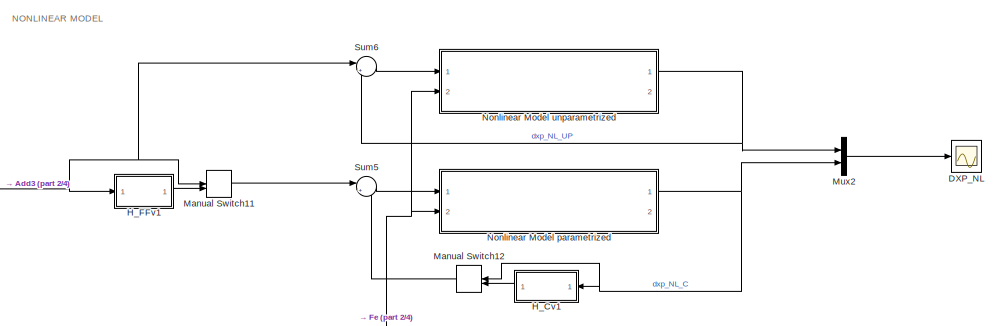
[diagram: root canvas - part 1/4, top right region]
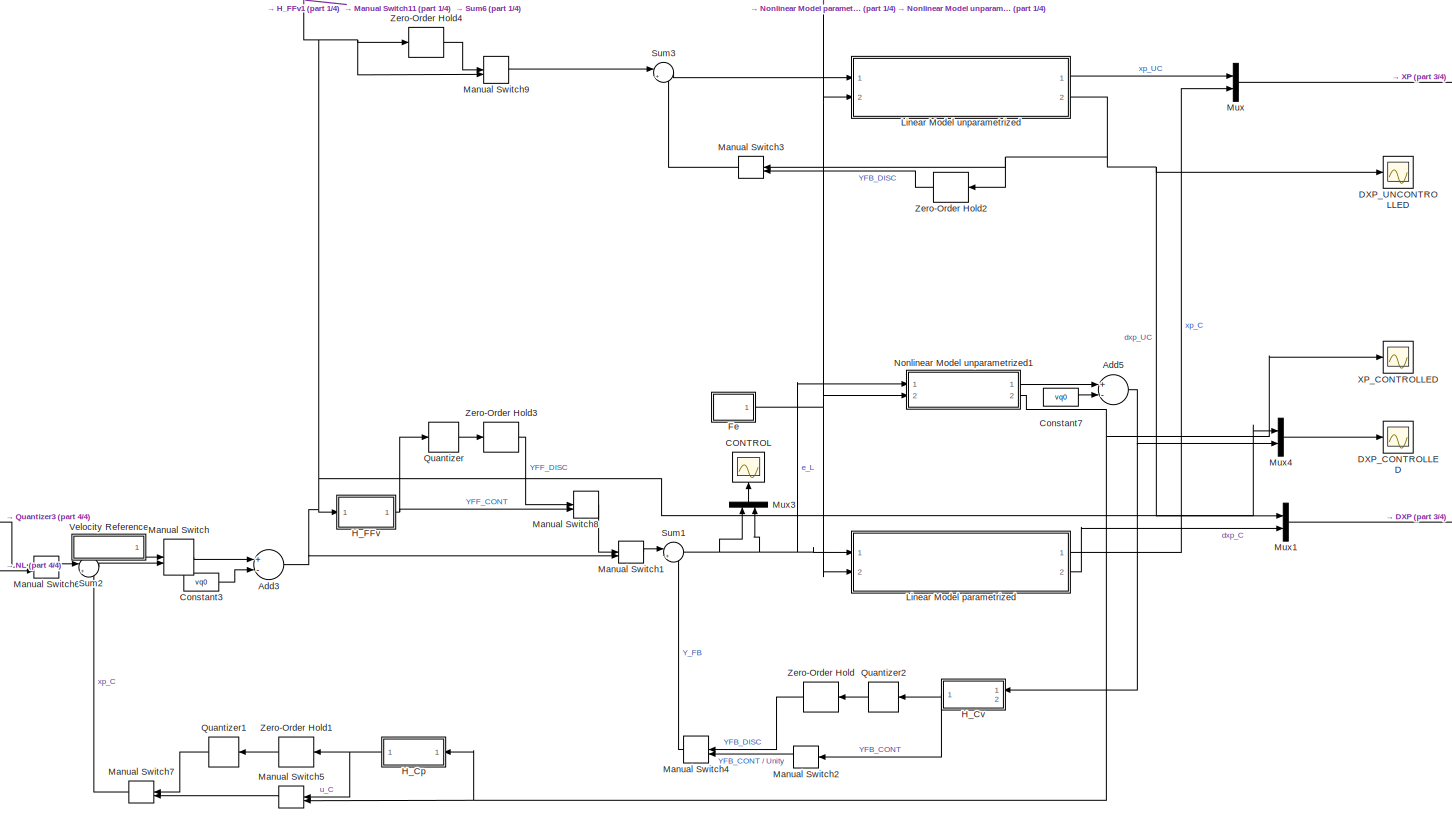
[diagram: root canvas - part 2/4, central region]
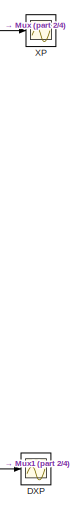
[diagram: root canvas - part 3/4, middle right region]
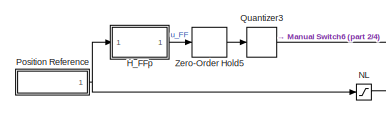
[diagram: root canvas - part 4/4, bottom left region]
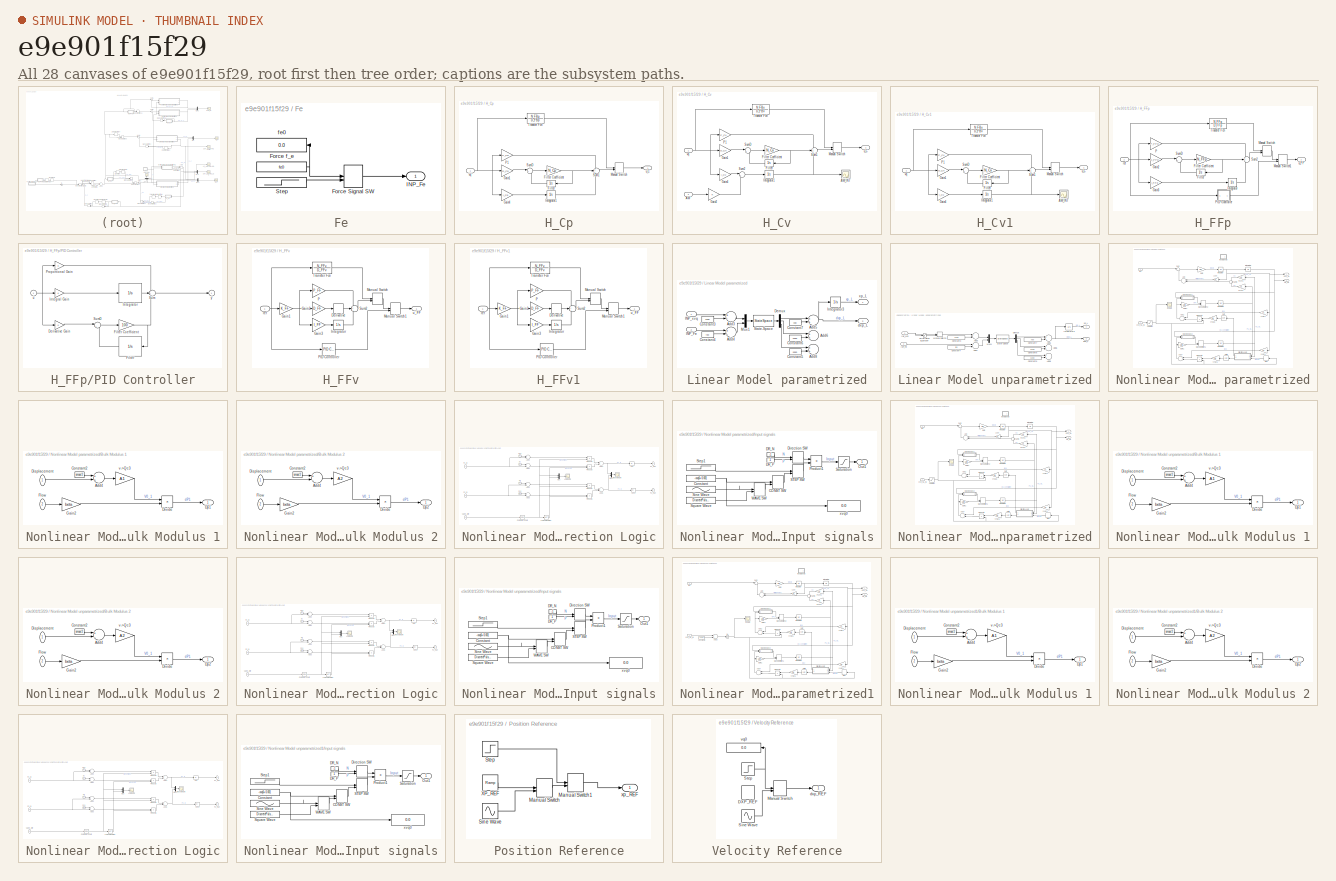
[diagram: thumbnail index - all 28 canvases of the model, root first then tree order]
MODEL slx_e9e901f15f29
KIND model
CONFIG AbsTol = auto
CONFIG EnableMultiTasking = off
CONFIG FixedStep = auto
CONFIG InitFcn = ex5LIN_param
CONFIG MaxStep = auto
CONFIG MinStep = auto
CONFIG RelTol = 1e-3
CONFIG SampleTimeConstraint = Unconstrained
CONFIG Solver = ode15s
CONFIG SolverName = ode15s
CONFIG StartTime = 0.0
CONFIG StopTime = 10
BLOCK [Sum] Add3
  InputSameDT = off
  Inputs = +-
  OutDataTypeStr = Inherit: Inherit via internal rule
  Ports = [2, 1]
  SaturateOnIntegerOverflow = off
BLOCK [Sum] Add5
  InputSameDT = off
  Inputs = +-
  OutDataTypeStr = Inherit: Inherit via internal rule
  Ports = [2, 1]
  SaturateOnIntegerOverflow = off
BLOCK [Scope] CONTROL
  NumInputPorts = 1
  Ports = [1]
  ScopeSpecificationString = Simulink.scopes.TimeScopeBlockCfg('CurrentConfiguration', extmgr.ConfigurationSet(extmgr.Configuration('Core','General UI',true),extmgr.Configuration('Core','Source UI',true),extmgr.Configuration('Sources','WiredSimulink',true,'DataLoggingVariableName','ScopeData1'),extmgr.Configuration('Visuals','Time Domain',true,'SerializedDisplays',{struct('MinYLimReal','-0.0125','MaxYLimReal','0.0125','YLabel...<+1688ch>
BLOCK [Constant] Constant3
  Value = vq0
BLOCK [Constant] Constant7
  Value = vq0
BLOCK [Scope] DXP
  NumInputPorts = 1
  Ports = [1]
  ScopeSpecificationString = Simulink.scopes.TimeScopeBlockCfg('CurrentConfiguration', extmgr.ConfigurationSet(extmgr.Configuration('Core','General UI',true),extmgr.Configuration('Core','Source UI',true),extmgr.Configuration('Sources','WiredSimulink',true,'DataLoggingVariableName','ScopeData3'),extmgr.Configuration('Visuals','Time Domain',true,'SerializedDisplays',{struct('MinYLimReal','-1.2721','MaxYLimReal','1.20042','YLabe...<+1669ch>
BLOCK [Scope] DXP_CONTROLLED
  NumInputPorts = 1
  Ports = [1]
  ScopeSpecificationString = Simulink.scopes.TimeScopeBlockCfg('CurrentConfiguration', extmgr.ConfigurationSet(extmgr.Configuration('Core','General UI',true),extmgr.Configuration('Core','Source UI',true),extmgr.Configuration('Sources','WiredSimulink',true,'DataLoggingVariableName','ScopeData3'),extmgr.Configuration('Visuals','Time Domain',true,'SerializedDisplays',{struct('MinYLimReal','-1.90363','MaxYLimReal','0.21151','YLab...<+1696ch>
BLOCK [Scope] DXP_NL
  Commented = on
  NumInputPorts = 1
  Ports = [1]
  ScopeSpecificationString = Simulink.scopes.TimeScopeBlockCfg('CurrentConfiguration', extmgr.ConfigurationSet(extmgr.Configuration('Core','General UI',true),extmgr.Configuration('Core','Source UI',true),extmgr.Configuration('Sources','WiredSimulink',true,'DataLoggingVariableName','ScopeData7'),extmgr.Configuration('Visuals','Time Domain',true,'SerializedDisplays',{struct('MinYLimReal','-0.13915','MaxYLimReal','1.25232','YLab...<+1668ch>
BLOCK [Scope] DXP_UNCONTROLLED
  Commented = on
  NumInputPorts = 1
  Ports = [1]
  ScopeSpecificationString = Simulink.scopes.TimeScopeBlockCfg('CurrentConfiguration', extmgr.ConfigurationSet(extmgr.Configuration('Core','General UI',true),extmgr.Configuration('Core','Source UI',true),extmgr.Configuration('Sources','WiredSimulink',true,'DataLoggingVariableName','ScopeData2'),extmgr.Configuration('Visuals','Time Domain',true,'SerializedDisplays',{struct('MinYLimReal','-1.2648','MaxYLimReal','1.19317','YLabe...<+1628ch>
BLOCK [SubSystem] Fe
  Ports = [0, 1]
  RequestExecContextInheritance = off
  Variant = off
BLOCK [ManualSwitch] Fe/Force Signal SW
BLOCK [Constant] Fe/Force f_e
  Value = fe0
BLOCK [Outport] Fe/INP_Fe
  IconDisplay = Port number
BLOCK [Step] Fe/Step
  After = 0
  SampleTime = 0
  Time = 0.12
BLOCK [Display] Fe/fe0
  Decimation = 1
  Ports = [1]
BLOCK [SubSystem] H_Cp
  Commented = on
  Ports = [1, 1]
  RequestExecContextInheritance = off
  Variant = off
BLOCK [Integrator] H_Cp/Filter
  DisableCoverage = on
  Ports = [1, 1]
BLOCK [Gain] H_Cp/Filter Coefficient
  Gain = N_Cp
  OutDataTypeStr = Inherit: Inherit via internal rule
  ParamDataTypeStr = Inherit: Inherit via internal rule
  SaturateOnIntegerOverflow = off
BLOCK [Gain] H_Cp/Gain1
  Gain = D_Cp
  OutDataTypeStr = Inherit: Inherit via internal rule
  ParamDataTypeStr = Inherit: Inherit via internal rule
  SaturateOnIntegerOverflow = off
BLOCK [Gain] H_Cp/Gain4
  Gain = I_Cp
  OutDataTypeStr = Inherit: Inherit via internal rule
  ParamDataTypeStr = Inherit: Inherit via internal rule
  SaturateOnIntegerOverflow = off
BLOCK [Integrator] H_Cp/Integrator1
  Ports = [1, 1]
BLOCK [ManualSwitch] H_Cp/Manual Switch
BLOCK [Gain] H_Cp/P1
  Gain = P_Cp
  OutDataTypeStr = Inherit: Inherit via internal rule
  ParamDataTypeStr = Inherit: Inherit via internal rule
  SaturateOnIntegerOverflow = off
BLOCK [Sum] H_Cp/Sum1
  IconShape = round
  InputSameDT = off
  Inputs = +++
  OutDataTypeStr = Inherit: Inherit via internal rule
  Ports = [3, 1]
  SaturateOnIntegerOverflow = off
BLOCK [Sum] H_Cp/SumD
  DisableCoverage = on
  IconShape = round
  InputSameDT = off
  Inputs = |+-
  OutDataTypeStr = Inherit: Inherit via internal rule
  Ports = [2, 1]
  SaturateOnIntegerOverflow = off
BLOCK [TransferFcn] H_Cp/Transfer Fcn
  Denominator = D_FBp
  Numerator = N_FBp
BLOCK [Outport] H_Cp/u_C
  IconDisplay = Port number
BLOCK [Inport] H_Cp/vq
  IconDisplay = Port number
BLOCK [SubSystem] H_Cv
  Ports = [2, 1]
  RequestExecContextInheritance = off
  Variant = off
BLOCK [Inport] H_Cv/AW
  IconDisplay = Port number
  Port = 2
BLOCK [Scope] H_Cv/AW_INT
  NumInputPorts = 1
  Ports = [1]
  ScopeSpecificationString = Simulink.scopes.TimeScopeBlockCfg('CurrentConfiguration', extmgr.ConfigurationSet(extmgr.Configuration('Core','General UI',true),extmgr.Configuration('Core','Source UI',true),extmgr.Configuration('Sources','WiredSimulink',true,'DataLoggingVariableName','ScopeData6'),extmgr.Configuration('Visuals','Time Domain',true,'SerializedDisplays',{struct('MinYLimReal','-1.00000','MaxYLimReal','1.00000','YLab...<+1637ch>
BLOCK [Integrator] H_Cv/Filter
  DisableCoverage = on
  Ports = [1, 1]
BLOCK [Gain] H_Cv/Filter Coefficient
  Gain = N_Cv
  OutDataTypeStr = Inherit: Inherit via internal rule
  ParamDataTypeStr = Inherit: Inherit via internal rule
  SaturateOnIntegerOverflow = off
BLOCK [Gain] H_Cv/Gain1
  Gain = D_Cv
  OutDataTypeStr = Inherit: Inherit via internal rule
  ParamDataTypeStr = Inherit: Inherit via internal rule
  SaturateOnIntegerOverflow = off
BLOCK [Gain] H_Cv/Gain2
  OutDataTypeStr = Inherit: Inherit via internal rule
  ParamDataTypeStr = Inherit: Inherit via internal rule
  SaturateOnIntegerOverflow = off
BLOCK [Gain] H_Cv/Gain4
  Gain = I_Cv
  OutDataTypeStr = Inherit: Inherit via internal rule
  ParamDataTypeStr = Inherit: Inherit via internal rule
  SaturateOnIntegerOverflow = off
BLOCK [Integrator] H_Cv/Integrator1
  Ports = [1, 1]
BLOCK [ManualSwitch] H_Cv/Manual Switch
BLOCK [Gain] H_Cv/P1
  Gain = P_Cv
  OutDataTypeStr = Inherit: Inherit via internal rule
  ParamDataTypeStr = Inherit: Inherit via internal rule
  SaturateOnIntegerOverflow = off
BLOCK [Sum] H_Cv/Sum1
  IconShape = round
  InputSameDT = off
  Inputs = +++
  OutDataTypeStr = Inherit: Inherit via internal rule
  Ports = [3, 1]
  SaturateOnIntegerOverflow = off
BLOCK [Sum] H_Cv/Sum2
  IconShape = round
  InputSameDT = off
  Inputs = |+-
  OutDataTypeStr = Inherit: Inherit via internal rule
  Ports = [2, 1]
  SaturateOnIntegerOverflow = off
BLOCK [Sum] H_Cv/SumD
  DisableCoverage = on
  IconShape = round
  InputSameDT = off
  Inputs = |+-
  OutDataTypeStr = Inherit: Inherit via internal rule
  Ports = [2, 1]
  SaturateOnIntegerOverflow = off
BLOCK [TransferFcn] H_Cv/Transfer Fcn
  Denominator = D_FBv
  Numerator = N_FBv
BLOCK [Outport] H_Cv/u_C
  IconDisplay = Port number
BLOCK [Inport] H_Cv/vq
  IconDisplay = Port number
BLOCK [SubSystem] H_Cv1
  Commented = on
  Ports = [1, 1]
  RequestExecContextInheritance = off
  Variant = off
BLOCK [Scope] H_Cv1/AW_INT
  NumInputPorts = 1
  Ports = [1]
  ScopeSpecificationString = Simulink.scopes.TimeScopeBlockCfg('CurrentConfiguration', extmgr.ConfigurationSet(extmgr.Configuration('Core','General UI',true),extmgr.Configuration('Core','Source UI',true),extmgr.Configuration('Sources','WiredSimulink',true,'DataLoggingVariableName','ScopeData6'),extmgr.Configuration('Visuals','Time Domain',true,'SerializedDisplays',{struct('MinYLimReal','-1.00000','MaxYLimReal','1.00000','YLab...<+1637ch>
BLOCK [Integrator] H_Cv1/Filter
  DisableCoverage = on
  Ports = [1, 1]
BLOCK [Gain] H_Cv1/Filter Coefficient
  Gain = N_Cv
  OutDataTypeStr = Inherit: Inherit via internal rule
  ParamDataTypeStr = Inherit: Inherit via internal rule
  SaturateOnIntegerOverflow = off
BLOCK [Gain] H_Cv1/Gain1
  Gain = D_Cv
  OutDataTypeStr = Inherit: Inherit via internal rule
  ParamDataTypeStr = Inherit: Inherit via internal rule
  SaturateOnIntegerOverflow = off
BLOCK [Gain] H_Cv1/Gain4
  Gain = I_Cv
  OutDataTypeStr = Inherit: Inherit via internal rule
  ParamDataTypeStr = Inherit: Inherit via internal rule
  SaturateOnIntegerOverflow = off
BLOCK [Integrator] H_Cv1/Integrator1
  Ports = [1, 1]
BLOCK [ManualSwitch] H_Cv1/Manual Switch
  CurrentSetting = 0
BLOCK [Gain] H_Cv1/P1
  Gain = P_Cv
  OutDataTypeStr = Inherit: Inherit via internal rule
  ParamDataTypeStr = Inherit: Inherit via internal rule
  SaturateOnIntegerOverflow = off
BLOCK [Sum] H_Cv1/Sum1
  IconShape = round
  InputSameDT = off
  Inputs = +++
  OutDataTypeStr = Inherit: Inherit via internal rule
  Ports = [3, 1]
  SaturateOnIntegerOverflow = off
BLOCK [Sum] H_Cv1/SumD
  DisableCoverage = on
  IconShape = round
  InputSameDT = off
  Inputs = |+-
  OutDataTypeStr = Inherit: Inherit via internal rule
  Ports = [2, 1]
  SaturateOnIntegerOverflow = off
BLOCK [TransferFcn] H_Cv1/Transfer Fcn
  Denominator = D_FBv
  Numerator = N_FBv
BLOCK [Outport] H_Cv1/u_C
  IconDisplay = Port number
BLOCK [Inport] H_Cv1/vq
  IconDisplay = Port number
BLOCK [SubSystem] H_FFp
  Commented = on
  Ports = [1, 1]
  RequestExecContextInheritance = off
  Variant = off
BLOCK [Integrator] H_FFp/Filter
  Commented = on
  DisableCoverage = on
  Ports = [1, 1]
BLOCK [Gain] H_FFp/Filter Coefficient
  Commented = on
  Gain = N_FFp
  OutDataTypeStr = Inherit: Inherit via internal rule
  ParamDataTypeStr = Inherit: Inherit via internal rule
  SaturateOnIntegerOverflow = off
BLOCK [Gain] H_FFp/Gain2
  Commented = on
  Gain = D_FFp
  OutDataTypeStr = Inherit: Inherit via internal rule
  ParamDataTypeStr = Inherit: Inherit via internal rule
  SaturateOnIntegerOverflow = off
BLOCK [Gain] H_FFp/Gain3
  Commented = on
  Gain = I_FFp
  OutDataTypeStr = Inherit: Inherit via internal rule
  ParamDataTypeStr = Inherit: Inherit via internal rule
  SaturateOnIntegerOverflow = off
BLOCK [Integrator] H_FFp/Integrator
  Commented = on
  Ports = [1, 1]
BLOCK [ManualSwitch] H_FFp/Manual Switch
BLOCK [ManualSwitch] H_FFp/Manual Switch1
BLOCK [Gain] H_FFp/P
  Commented = on
  Gain = P_FFp
  OutDataTypeStr = Inherit: Inherit via internal rule
  ParamDataTypeStr = Inherit: Inherit via internal rule
  SaturateOnIntegerOverflow = off
BLOCK [SubSystem] H_FFp/PID Controller
  AncestorBlock = simulink/Continuous/PID Controller
  DeleteFcn = pidpack.PIDConfig.closeTuner(gcbh)
  DialogController = pidpack.PIDConfig.pidDDGCreate
  ModelCloseFcn = pidpack.PIDConfig.closeTuner(gcbh)
  NameChangeFcn = pidpack.PIDConfig.updateTunerName(gcbh)
  Ports = [1, 1]
  RequestExecContextInheritance = off
  Variant = off
BLOCK [Gain] H_FFp/PID Controller/Derivative Gain
  DisableCoverage = on
  Gain = 0
  OutDataTypeStr = Inherit: Inherit via internal rule
  ParamDataTypeStr = Inherit: Inherit via internal rule
  SaturateOnIntegerOverflow = off
BLOCK [Integrator] H_FFp/PID Controller/Filter
  DisableCoverage = on
  Ports = [1, 1]
BLOCK [Gain] H_FFp/PID Controller/Filter Coefficient
  Gain = 100
  OutDataTypeStr = Inherit: Inherit via internal rule
  ParamDataTypeStr = Inherit: Inherit via internal rule
  SaturateOnIntegerOverflow = off
BLOCK [Gain] H_FFp/PID Controller/Integral Gain
  DisableCoverage = on
  OutDataTypeStr = Inherit: Inherit via internal rule
  ParamDataTypeStr = Inherit: Inherit via internal rule
  SaturateOnIntegerOverflow = off
BLOCK [Integrator] H_FFp/PID Controller/Integrator
  Ports = [1, 1]
BLOCK [Gain] H_FFp/PID Controller/Proportional Gain
  OutDataTypeStr = Inherit: Inherit via internal rule
  ParamDataTypeStr = Inherit: Inherit via internal rule
  SaturateOnIntegerOverflow = off
BLOCK [Sum] H_FFp/PID Controller/Sum
  IconShape = round
  InputSameDT = off
  Inputs = +++
  OutDataTypeStr = Inherit: Inherit via internal rule
  Ports = [3, 1]
  SaturateOnIntegerOverflow = off
BLOCK [Sum] H_FFp/PID Controller/SumD
  DisableCoverage = on
  IconShape = round
  InputSameDT = off
  Inputs = |+-
  OutDataTypeStr = Inherit: Inherit via internal rule
  Ports = [2, 1]
  SaturateOnIntegerOverflow = off
BLOCK [Inport] H_FFp/PID Controller/u
  IconDisplay = Port number
BLOCK [Outport] H_FFp/PID Controller/y
  IconDisplay = Port number
  InitialOutput = 0
BLOCK [Sum] H_FFp/Sum2
  Commented = on
  IconShape = round
  InputSameDT = off
  Inputs = +++
  OutDataTypeStr = Inherit: Inherit via internal rule
  Ports = [3, 1]
  SaturateOnIntegerOverflow = off
BLOCK [Sum] H_FFp/SumD
  Commented = on
  DisableCoverage = on
  IconShape = round
  InputSameDT = off
  Inputs = |+-
  OutDataTypeStr = Inherit: Inherit via internal rule
  Ports = [2, 1]
  SaturateOnIntegerOverflow = off
BLOCK [TransferFcn] H_FFp/Transfer Fcn
  Denominator = D_FFp
  Numerator = N_FFp
BLOCK [Inport] H_FFp/ref
  IconDisplay = Port number
BLOCK [Outport] H_FFp/u_FF
  IconDisplay = Port number
BLOCK [SubSystem] H_FFv
  Ports = [1, 1]
  RequestExecContextInheritance = off
  Variant = off
BLOCK [Derivative] H_FFv/Derivative
  CoefficientInTFapproximation = T_LPFF
  Commented = on
BLOCK [Gain] H_FFv/Gain1
  Commented = on
  Gain = K_FF
  OutDataTypeStr = Inherit: Inherit via internal rule
  ParamDataTypeStr = Inherit: Inherit via internal rule
  SaturateOnIntegerOverflow = off
BLOCK [Gain] H_FFv/Gain2
  Commented = on
  Gain = D_FF
  OutDataTypeStr = Inherit: Inherit via internal rule
  ParamDataTypeStr = Inherit: Inherit via internal rule
  SaturateOnIntegerOverflow = off
BLOCK [Gain] H_FFv/Gain3
  Commented = on
  Gain = I_FF
  OutDataTypeStr = Inherit: Inherit via internal rule
  ParamDataTypeStr = Inherit: Inherit via internal rule
  SaturateOnIntegerOverflow = off
BLOCK [Integrator] H_FFv/Integrator
  Commented = on
  Ports = [1, 1]
BLOCK [ManualSwitch] H_FFv/Manual Switch
BLOCK [ManualSwitch] H_FFv/Manual Switch1
BLOCK [Gain] H_FFv/P
  Commented = on
  Gain = P_FF
  OutDataTypeStr = Inherit: Inherit via internal rule
  ParamDataTypeStr = Inherit: Inherit via internal rule
  SaturateOnIntegerOverflow = off
BLOCK [Reference] H_FFv/PID Controller  REF=simulink/Continuous/PID Controller
  Commented = on
  Ports = [1, 1]
  SourceBlock = simulink/Continuous/PID Controller
  SourceType = PID 1dof
BLOCK [Sum] H_FFv/Sum2
  Commented = on
  IconShape = round
  InputSameDT = off
  Inputs = +++
  OutDataTypeStr = Inherit: Inherit via internal rule
  Ports = [3, 1]
  SaturateOnIntegerOverflow = off
BLOCK [TransferFcn] H_FFv/Transfer Fcn
  Denominator = D_FFv
  Numerator = N_FFv
BLOCK [Inport] H_FFv/ref
  IconDisplay = Port number
BLOCK [Outport] H_FFv/u_FF
  IconDisplay = Port number
BLOCK [SubSystem] H_FFv1
  Commented = on
  Ports = [1, 1]
  RequestExecContextInheritance = off
  Variant = off
BLOCK [Derivative] H_FFv1/Derivative
  CoefficientInTFapproximation = T_LPFF
  Commented = on
BLOCK [Gain] H_FFv1/Gain1
  Commented = on
  Gain = K_FF
  OutDataTypeStr = Inherit: Inherit via internal rule
  ParamDataTypeStr = Inherit: Inherit via internal rule
  SaturateOnIntegerOverflow = off
BLOCK [Gain] H_FFv1/Gain2
  Commented = on
  Gain = D_FF
  OutDataTypeStr = Inherit: Inherit via internal rule
  ParamDataTypeStr = Inherit: Inherit via internal rule
  SaturateOnIntegerOverflow = off
BLOCK [Gain] H_FFv1/Gain3
  Commented = on
  Gain = I_FF
  OutDataTypeStr = Inherit: Inherit via internal rule
  ParamDataTypeStr = Inherit: Inherit via internal rule
  SaturateOnIntegerOverflow = off
BLOCK [Integrator] H_FFv1/Integrator
  Commented = on
  Ports = [1, 1]
BLOCK [ManualSwitch] H_FFv1/Manual Switch
BLOCK [ManualSwitch] H_FFv1/Manual Switch1
BLOCK [Gain] H_FFv1/P
  Commented = on
  Gain = P_FF
  OutDataTypeStr = Inherit: Inherit via internal rule
  ParamDataTypeStr = Inherit: Inherit via internal rule
  SaturateOnIntegerOverflow = off
BLOCK [Reference] H_FFv1/PID Controller  REF=simulink/Continuous/PID Controller
  Commented = on
  Ports = [1, 1]
  SourceBlock = simulink/Continuous/PID Controller
  SourceType = PID 1dof
BLOCK [Sum] H_FFv1/Sum2
  Commented = on
  IconShape = round
  InputSameDT = off
  Inputs = +++
  OutDataTypeStr = Inherit: Inherit via internal rule
  Ports = [3, 1]
  SaturateOnIntegerOverflow = off
BLOCK [TransferFcn] H_FFv1/Transfer Fcn
  Denominator = D_FFv
  Numerator = N_FFv
BLOCK [Inport] H_FFv1/ref
  IconDisplay = Port number
BLOCK [Outport] H_FFv1/u_FF
  IconDisplay = Port number
BLOCK [SubSystem] Linear Model parametrized
  Commented = on
  Ports = [2, 2]
  RequestExecContextInheritance = off
  Variant = off
BLOCK [Sum] Linear Model parametrized/Add3
  InputSameDT = off
  Inputs = +-
  OutDataTypeStr = Inherit: Inherit via internal rule
  Ports = [2, 1]
  SaturateOnIntegerOverflow = off
BLOCK [Sum] Linear Model parametrized/Add4
  InputSameDT = off
  Inputs = +-
  OutDataTypeStr = Inherit: Inherit via internal rule
  Ports = [2, 1]
  SaturateOnIntegerOverflow = off
BLOCK [Sum] Linear Model parametrized/Add5
  InputSameDT = off
  OutDataTypeStr = Inherit: Inherit via internal rule
  Ports = [2, 1]
  SaturateOnIntegerOverflow = off
BLOCK [Sum] Linear Model parametrized/Add6
  Commented = on
  InputSameDT = off
  OutDataTypeStr = Inherit: Inherit via internal rule
  Ports = [2, 1]
  SaturateOnIntegerOverflow = off
BLOCK [Sum] Linear Model parametrized/Add8
  Commented = on
  InputSameDT = off
  OutDataTypeStr = Inherit: Inherit via internal rule
  Ports = [2, 1]
  SaturateOnIntegerOverflow = off
BLOCK [Constant] Linear Model parametrized/Constant3
  Value = xvq0
BLOCK [Constant] Linear Model parametrized/Constant4
  Value = fe0
BLOCK [Constant] Linear Model parametrized/Constant5
  Value = p2q0
BLOCK [Constant] Linear Model parametrized/Constant6
  Value = p1q0
BLOCK [Constant] Linear Model parametrized/Constant7
  Value = vq0
BLOCK [Demux] Linear Model parametrized/Demux
  DisplayOption = bar
  Outputs = 3
  Ports = [1, 3]
BLOCK [Inport] Linear Model parametrized/INP_Fe
  IconDisplay = Port number
  Port = 2
BLOCK [Inport] Linear Model parametrized/INP_xvq
  IconDisplay = Port number
BLOCK [Integrator] Linear Model parametrized/Integrator3
  Ports = [1, 1]
BLOCK [Mux] Linear Model parametrized/Mux1
  DisplayOption = bar
  Inputs = 2
  Ports = [2, 1]
BLOCK [StateSpace] Linear Model parametrized/State-Space
  A = A
  B = B
  C = C
  D = D0
  Ports = [1, 1]
  X0 = 0
BLOCK [Outport] Linear Model parametrized/dxp_L
  IconDisplay = Port number
  Port = 2
BLOCK [Outport] Linear Model parametrized/xp_L
  IconDisplay = Port number
BLOCK [SubSystem] Linear Model unparametrized
  Commented = on
  Ports = [2, 2]
  RequestExecContextInheritance = off
  Variant = off
BLOCK [Sum] Linear Model unparametrized/Add3
  InputSameDT = off
  Inputs = +-
  OutDataTypeStr = Inherit: Inherit via internal rule
  Ports = [2, 1]
  SaturateOnIntegerOverflow = off
BLOCK [Sum] Linear Model unparametrized/Add4
  InputSameDT = off
  Inputs = +-
  OutDataTypeStr = Inherit: Inherit via internal rule
  Ports = [2, 1]
  SaturateOnIntegerOverflow = off
BLOCK [Sum] Linear Model unparametrized/Add5
  InputSameDT = off
  OutDataTypeStr = Inherit: Inherit via internal rule
  Ports = [2, 1]
  SaturateOnIntegerOverflow = off
BLOCK [Sum] Linear Model unparametrized/Add6
  Commented = on
  InputSameDT = off
  OutDataTypeStr = Inherit: Inherit via internal rule
  Ports = [2, 1]
  SaturateOnIntegerOverflow = off
BLOCK [Sum] Linear Model unparametrized/Add8
  Commented = on
  InputSameDT = off
  OutDataTypeStr = Inherit: Inherit via internal rule
  Ports = [2, 1]
  SaturateOnIntegerOverflow = off
BLOCK [Constant] Linear Model unparametrized/Constant3
  Value = xvq0
BLOCK [Constant] Linear Model unparametrized/Constant4
  Value = fe0
BLOCK [Constant] Linear Model unparametrized/Constant5
  Value = p2q0
BLOCK [Constant] Linear Model unparametrized/Constant6
  Value = p1q0
BLOCK [Constant] Linear Model unparametrized/Constant7
  Value = vq0
BLOCK [Demux] Linear Model unparametrized/Demux
  DisplayOption = bar
  Outputs = 3
  Ports = [1, 3]
BLOCK [Inport] Linear Model unparametrized/INP_Fe
  IconDisplay = Port number
  Port = 2
BLOCK [Inport] Linear Model unparametrized/INP_xvq
  IconDisplay = Port number
BLOCK [Integrator] Linear Model unparametrized/Integrator3
  Ports = [1, 1]
BLOCK [ManualSwitch] Linear Model unparametrized/Manual Switch3
  CurrentSetting = 0
BLOCK [Mux] Linear Model unparametrized/Mux1
  DisplayOption = bar
  Inputs = 2
  Ports = [2, 1]
BLOCK [Saturate] Linear Model unparametrized/NONLINEAR ELEMENT
  InputPortMap = u0
  LowerLimit = vn
  Ports = [1, 1]
  UpperLimit = vp
BLOCK [StateSpace] Linear Model unparametrized/State-Space
  A = A
  B = B
  C = C
  D = D0
  Ports = [1, 1]
  X0 = 0
BLOCK [Outport] Linear Model unparametrized/dxp_L
  IconDisplay = Port number
  Port = 2
BLOCK [Outport] Linear Model unparametrized/xp_L
  IconDisplay = Port number
BLOCK [ManualSwitch] Manual Switch
  CurrentSetting = 0
BLOCK [ManualSwitch] Manual Switch1
BLOCK [ManualSwitch] Manual Switch11
  Commented = on
  CurrentSetting = 0
BLOCK [ManualSwitch] Manual Switch12
  Commented = on
  CurrentSetting = 0
BLOCK [ManualSwitch] Manual Switch2
BLOCK [ManualSwitch] Manual Switch3
  Commented = on
  CurrentSetting = 0
BLOCK [ManualSwitch] Manual Switch4
  CurrentSetting = 0
BLOCK [ManualSwitch] Manual Switch5
  CurrentSetting = 0
BLOCK [ManualSwitch] Manual Switch6
  CurrentSetting = 0
BLOCK [ManualSwitch] Manual Switch7
  CurrentSetting = 0
BLOCK [ManualSwitch] Manual Switch8
  CurrentSetting = 0
BLOCK [ManualSwitch] Manual Switch9
  Commented = on
BLOCK [Mux] Mux
  Commented = on
  DisplayOption = bar
  Inputs = 2
  Ports = [2, 1]
BLOCK [Mux] Mux1
  DisplayOption = bar
  Inputs = 2
  Ports = [2, 1]
BLOCK [Mux] Mux2
  Commented = on
  DisplayOption = bar
  Inputs = 2
  Ports = [2, 1]
BLOCK [Mux] Mux3
  DisplayOption = bar
  Inputs = 2
  Ports = [2, 1]
BLOCK [Mux] Mux4
  DisplayOption = bar
  Inputs = 2
  Ports = [2, 1]
BLOCK [Saturate] NL
  InputPortMap = u0
  LowerLimit = -0.35
  Ports = [1, 1]
  UpperLimit = 0.35
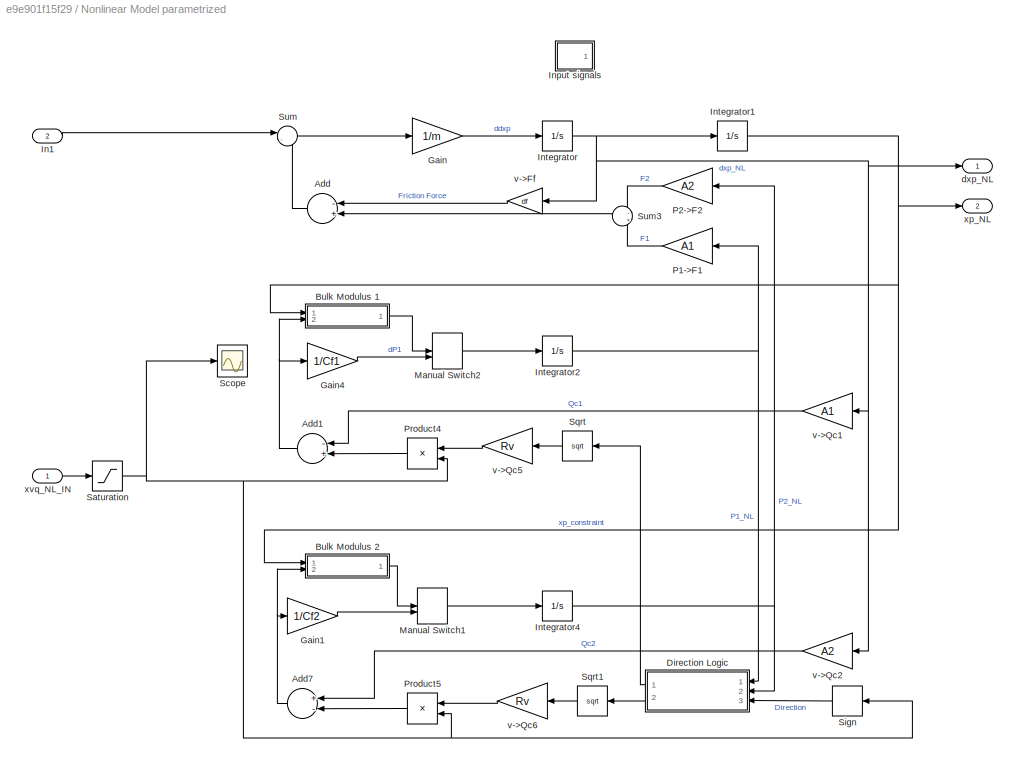
BLOCK [SubSystem] Nonlinear Model parametrized
  Commented = on
  Ports = [2, 2]
  RequestExecContextInheritance = off
  Variant = off
BLOCK [Sum] Nonlinear Model parametrized/Add
  InputSameDT = off
  Inputs = -+
  OutDataTypeStr = Inherit: Inherit via internal rule
  Ports = [2, 1]
  SaturateOnIntegerOverflow = off
BLOCK [Sum] Nonlinear Model parametrized/Add1
  InputSameDT = off
  Inputs = -+
  OutDataTypeStr = Inherit: Inherit via internal rule
  Ports = [2, 1]
  SaturateOnIntegerOverflow = off
BLOCK [Sum] Nonlinear Model parametrized/Add7
  InputSameDT = off
  Inputs = +-
  OutDataTypeStr = Inherit: Inherit via internal rule
  Ports = [2, 1]
  SaturateOnIntegerOverflow = off
BLOCK [SubSystem] Nonlinear Model parametrized/Bulk Modulus 1
  Commented = on
  Ports = [2, 1]
  RequestExecContextInheritance = off
  Variant = off
BLOCK [Sum] Nonlinear Model parametrized/Bulk Modulus 1/Add4
  InputSameDT = off
  OutDataTypeStr = Inherit: Inherit via internal rule
  Ports = [2, 1]
  SaturateOnIntegerOverflow = off
BLOCK [Constant] Nonlinear Model parametrized/Bulk Modulus 1/Constant2
  Value = smax/2
BLOCK [Inport] Nonlinear Model parametrized/Bulk Modulus 1/Displacement
  IconDisplay = Port number
BLOCK [Product] Nonlinear Model parametrized/Bulk Modulus 1/Divide
  InputSameDT = off
  Inputs = /*
  OutDataTypeStr = Inherit: Inherit via internal rule
  Ports = [2, 1]
  RndMeth = Floor
  SaturateOnIntegerOverflow = off
BLOCK [Outport] Nonlinear Model parametrized/Bulk Modulus 1/Dp1
  IconDisplay = Port number
BLOCK [Inport] Nonlinear Model parametrized/Bulk Modulus 1/Flow
  IconDisplay = Port number
  Port = 2
BLOCK [Gain] Nonlinear Model parametrized/Bulk Modulus 1/Gain2
  Gain = beta
  OutDataTypeStr = Inherit: Inherit via internal rule
  ParamDataTypeStr = Inherit: Inherit via internal rule
  SaturateOnIntegerOverflow = off
BLOCK [Gain] Nonlinear Model parametrized/Bulk Modulus 1/v->Qc3
  Gain = A1
  OutDataTypeStr = Inherit: Inherit via internal rule
  ParamDataTypeStr = Inherit: Inherit via internal rule
  SaturateOnIntegerOverflow = off
BLOCK [SubSystem] Nonlinear Model parametrized/Bulk Modulus 2
  Commented = on
  Ports = [2, 1]
  RequestExecContextInheritance = off
  Variant = off
BLOCK [Sum] Nonlinear Model parametrized/Bulk Modulus 2/Add4
  InputSameDT = off
  Inputs = +-
  OutDataTypeStr = Inherit: Inherit via internal rule
  Ports = [2, 1]
  SaturateOnIntegerOverflow = off
BLOCK [Constant] Nonlinear Model parametrized/Bulk Modulus 2/Constant2
  Value = smax/2
BLOCK [Inport] Nonlinear Model parametrized/Bulk Modulus 2/Displacement
  IconDisplay = Port number
BLOCK [Product] Nonlinear Model parametrized/Bulk Modulus 2/Divide
  InputSameDT = off
  Inputs = /*
  OutDataTypeStr = Inherit: Inherit via internal rule
  Ports = [2, 1]
  RndMeth = Floor
  SaturateOnIntegerOverflow = off
BLOCK [Outport] Nonlinear Model parametrized/Bulk Modulus 2/Dp2
  IconDisplay = Port number
BLOCK [Inport] Nonlinear Model parametrized/Bulk Modulus 2/Flow
  IconDisplay = Port number
  Port = 2
BLOCK [Gain] Nonlinear Model parametrized/Bulk Modulus 2/Gain2
  Gain = beta
  OutDataTypeStr = Inherit: Inherit via internal rule
  ParamDataTypeStr = Inherit: Inherit via internal rule
  SaturateOnIntegerOverflow = off
BLOCK [Gain] Nonlinear Model parametrized/Bulk Modulus 2/v->Qc3
  Gain = A2
  OutDataTypeStr = Inherit: Inherit via internal rule
  ParamDataTypeStr = Inherit: Inherit via internal rule
  SaturateOnIntegerOverflow = off
BLOCK [SubSystem] Nonlinear Model parametrized/Direction Logic
  Ports = [3, 2]
  RequestExecContextInheritance = off
  Variant = off
BLOCK [Abs] Nonlinear Model parametrized/Direction Logic/Abs
  SaturateOnIntegerOverflow = off
  ZeroCross = off
BLOCK [Abs] Nonlinear Model parametrized/Direction Logic/Abs1
  SaturateOnIntegerOverflow = off
BLOCK [Sum] Nonlinear Model parametrized/Direction Logic/Add1
  InputSameDT = off
  Inputs = +-
  OutDataTypeStr = Inherit: Inherit via internal rule
  Ports = [2, 1]
  SaturateOnIntegerOverflow = off
BLOCK [Sum] Nonlinear Model parametrized/Direction Logic/Add2
  InputSameDT = off
  Inputs = -+
  OutDataTypeStr = Inherit: Inherit via internal rule
  Ports = [2, 1]
  SaturateOnIntegerOverflow = off
BLOCK [Sum] Nonlinear Model parametrized/Direction Logic/Add3
  InputSameDT = off
  Inputs = +-
  OutDataTypeStr = Inherit: Inherit via internal rule
  Ports = [2, 1]
  SaturateOnIntegerOverflow = off
BLOCK [Sum] Nonlinear Model parametrized/Direction Logic/Add4
  InputSameDT = off
  OutDataTypeStr = Inherit: Inherit via internal rule
  Ports = [2, 1]
  SaturateOnIntegerOverflow = off
BLOCK [Sum] Nonlinear Model parametrized/Direction Logic/Add5
  InputSameDT = off
  OutDataTypeStr = Inherit: Inherit via internal rule
  Ports = [2, 1]
  SaturateOnIntegerOverflow = off
BLOCK [Sum] Nonlinear Model parametrized/Direction Logic/Add9
  InputSameDT = off
  Inputs = +-
  OutDataTypeStr = Inherit: Inherit via internal rule
  Ports = [2, 1]
  SaturateOnIntegerOverflow = off
BLOCK [Reference] Nonlinear Model parametrized/Direction Logic/Compare To Zero  REF=simulink/Logic and Bit
Operations/Compare
To Zero
  Ports = [1, 1]
  SourceBlock = simulink/Logic and Bit\nOperations/Compare\nTo Zero
  SourceType = Compare To Zero
BLOCK [Scope] Nonlinear Model parametrized/Direction Logic/Logic Unit
  NumInputPorts = 1
  Ports = [1]
  ScopeSpecificationString = Simulink.scopes.TimeScopeBlockCfg('CurrentConfiguration', extmgr.ConfigurationSet(extmgr.Configuration('Core','General UI',true),extmgr.Configuration('Core','Source UI',true),extmgr.Configuration('Sources','WiredSimulink',true,'DataLoggingVariableName','ScopeData9'),extmgr.Configuration('Visuals','Time Domain',true,'SerializedDisplays',{struct('MinYLimReal','-0.125','MaxYLimReal','1.125','YLabelRe...<+1400ch>  <repeated x3 — deduplicated; at blocks: Logic Unit>
BLOCK [Logic] Nonlinear Model parametrized/Direction Logic/Logical Operator
  AllPortsSameDT = off
  Operator = NOT
  OutDataTypeStr = boolean
  Ports = [1, 1]
BLOCK [Mux] Nonlinear Model parametrized/Direction Logic/Mux
  DisplayOption = bar
  Inputs = 2
  Ports = [2, 1]
BLOCK [Mux] Nonlinear Model parametrized/Direction Logic/Mux1
  DisplayOption = bar
  Inputs = 2
  Ports = [2, 1]
BLOCK [Inport] Nonlinear Model parametrized/Direction Logic/P1_In
  IconDisplay = Port number
BLOCK [Outport] Nonlinear Model parametrized/Direction Logic/P1_Out
  IconDisplay = Port number
BLOCK [Inport] Nonlinear Model parametrized/Direction Logic/P2_In
  IconDisplay = Port number
  Port = 2
BLOCK [Outport] Nonlinear Model parametrized/Direction Logic/P2_Out
  IconDisplay = Port number
  Port = 2
BLOCK [Scope] Nonlinear Model parametrized/Direction Logic/Pressure Unit
  NumInputPorts = 1
  Ports = [1]
  ScopeSpecificationString = Simulink.scopes.TimeScopeBlockCfg('CurrentConfiguration', extmgr.ConfigurationSet(extmgr.Configuration('Core','General UI',true),extmgr.Configuration('Core','Source UI',true),extmgr.Configuration('Sources','WiredSimulink',true,'DataLoggingVariableName','ScopeData2'),extmgr.Configuration('Visuals','Time Domain',true,'SerializedDisplays',{struct('MinYLimReal','-893141.30415','MaxYLimReal','8065087.7...<+1443ch>
BLOCK [Product] Nonlinear Model parametrized/Direction Logic/Product2
  InputSameDT = off
  OutDataTypeStr = Inherit: Inherit via internal rule
  Ports = [2, 1]
  RndMeth = Floor
  SaturateOnIntegerOverflow = off
BLOCK [Product] Nonlinear Model parametrized/Direction Logic/Product3
  InputSameDT = off
  OutDataTypeStr = Inherit: Inherit via internal rule
  Ports = [2, 1]
  RndMeth = Floor
  SaturateOnIntegerOverflow = off
BLOCK [Product] Nonlinear Model parametrized/Direction Logic/Product4
  InputSameDT = off
  OutDataTypeStr = Inherit: Inherit via internal rule
  Ports = [2, 1]
  RndMeth = Floor
  SaturateOnIntegerOverflow = off
BLOCK [Product] Nonlinear Model parametrized/Direction Logic/Product5
  InputSameDT = off
  OutDataTypeStr = Inherit: Inherit via internal rule
  Ports = [2, 1]
  RndMeth = Floor
  SaturateOnIntegerOverflow = off
BLOCK [Constant] Nonlinear Model parametrized/Direction Logic/Ps1
  Value = Ps
BLOCK [Constant] Nonlinear Model parametrized/Direction Logic/Ps2
  Value = Ps
BLOCK [Constant] Nonlinear Model parametrized/Direction Logic/Pt
  Value = Pt
BLOCK [Constant] Nonlinear Model parametrized/Direction Logic/Pt1
  Value = Pt
BLOCK [Inport] Nonlinear Model parametrized/Direction Logic/Valve_DIR
  IconDisplay = Port number
  Port = 3
BLOCK [Gain] Nonlinear Model parametrized/Gain
  Gain = 1/m
  OutDataTypeStr = Inherit: Inherit via internal rule
  ParamDataTypeStr = Inherit: Inherit via internal rule
  SaturateOnIntegerOverflow = off
BLOCK [Gain] Nonlinear Model parametrized/Gain1
  Gain = 1/Cf2
  OutDataTypeStr = Inherit: Inherit via internal rule
  ParamDataTypeStr = Inherit: Inherit via internal rule
  SaturateOnIntegerOverflow = off
BLOCK [Gain] Nonlinear Model parametrized/Gain4
  Gain = 1/Cf1
  OutDataTypeStr = Inherit: Inherit via internal rule
  ParamDataTypeStr = Inherit: Inherit via internal rule
  SaturateOnIntegerOverflow = off
BLOCK [Inport] Nonlinear Model parametrized/In1
  IconDisplay = Port number
  Port = 2
BLOCK [SubSystem] Nonlinear Model parametrized/Input signals
  Commented = on
  Ports = [0, 1]
  RequestExecContextInheritance = off
  Variant = off
BLOCK [ManualSwitch] Nonlinear Model parametrized/Input signals/CONST SW
BLOCK [Constant] Nonlinear Model parametrized/Input signals/Constant
  Value = -xvq0+0.001
BLOCK [Constant] Nonlinear Model parametrized/Input signals/DR_N
  Value = -1
BLOCK [Constant] Nonlinear Model parametrized/Input signals/DR_P 
BLOCK [ManualSwitch] Nonlinear Model parametrized/Input signals/Direction SW
BLOCK [Outport] Nonlinear Model parametrized/Input signals/Out1
  IconDisplay = Port number
BLOCK [Product] Nonlinear Model parametrized/Input signals/Product1
  InputSameDT = off
  OutDataTypeStr = Inherit: Inherit via internal rule
  Ports = [2, 1]
  RndMeth = Floor
  SaturateOnIntegerOverflow = off
BLOCK [ManualSwitch] Nonlinear Model parametrized/Input signals/STEP SW
  CurrentSetting = 0
BLOCK [Saturate] Nonlinear Model parametrized/Input signals/Saturation
  InputPortMap = u0
  LowerLimit = vn
  Ports = [1, 1]
  UpperLimit = vp
BLOCK [Sin] Nonlinear Model parametrized/Input signals/Sine Wave
  Amplitude = xvq0
  Frequency = 2*pi*1/2
  Phase = pi/2
  Ports = [0, 1]
  SampleTime = 0
BLOCK [DiscretePulseGenerator] Nonlinear Model parametrized/Input signals/Square Wave
  Amplitude = 0.0001
  Ports = [0, 1]
  PulseType = Time based
  PulseWidth = 50
BLOCK [Step] Nonlinear Model parametrized/Input signals/Step1
  After = 0.005
  SampleTime = 0
  Time = 0
BLOCK [ManualSwitch] Nonlinear Model parametrized/Input signals/WAVE SW
BLOCK [Display] Nonlinear Model parametrized/Input signals/xvq0
  Decimation = 1
  Ports = [1]
BLOCK [Integrator] Nonlinear Model parametrized/Integrator
  Ports = [1, 1]
BLOCK [Integrator] Nonlinear Model parametrized/Integrator1
  LimitOutput = on
  LowerSaturationLimit = -(smax/2-d)
  Ports = [1, 1]
  UpperSaturationLimit = (smax/2-d)
BLOCK [Integrator] Nonlinear Model parametrized/Integrator2
  Ports = [1, 1]
BLOCK [Integrator] Nonlinear Model parametrized/Integrator4
  Ports = [1, 1]
BLOCK [ManualSwitch] Nonlinear Model parametrized/Manual Switch1
  CurrentSetting = 0
BLOCK [ManualSwitch] Nonlinear Model parametrized/Manual Switch2
  CurrentSetting = 0
BLOCK [Gain] Nonlinear Model parametrized/P1->F1
  Gain = A1
  OutDataTypeStr = Inherit: Inherit via internal rule
  ParamDataTypeStr = Inherit: Inherit via internal rule
  SaturateOnIntegerOverflow = off
BLOCK [Gain] Nonlinear Model parametrized/P2->F2
  Gain = A2
  OutDataTypeStr = Inherit: Inherit via internal rule
  ParamDataTypeStr = Inherit: Inherit via internal rule
  SaturateOnIntegerOverflow = off
BLOCK [Product] Nonlinear Model parametrized/Product4
  InputSameDT = off
  OutDataTypeStr = Inherit: Inherit via internal rule
  Ports = [2, 1]
  RndMeth = Floor
  SaturateOnIntegerOverflow = off
BLOCK [Product] Nonlinear Model parametrized/Product5
  InputSameDT = off
  OutDataTypeStr = Inherit: Inherit via internal rule
  Ports = [2, 1]
  RndMeth = Floor
  SaturateOnIntegerOverflow = off
BLOCK [Saturate] Nonlinear Model parametrized/Saturation
  InputPortMap = u0
  LowerLimit = vn
  Ports = [1, 1]
  UpperLimit = vp
BLOCK [Scope] Nonlinear Model parametrized/Scope
  NumInputPorts = 1
  Ports = [1]
  ScopeSpecificationString = Simulink.scopes.TimeScopeBlockCfg('CurrentConfiguration', extmgr.ConfigurationSet(extmgr.Configuration('Core','General UI',true),extmgr.Configuration('Core','Source UI',true),extmgr.Configuration('Sources','WiredSimulink',true,'DataLoggingVariableName','ScopeData2'),extmgr.Configuration('Visuals','Time Domain',true,'SerializedDisplays',{struct('MinYLimReal','-0.0125','MaxYLimReal','0.0125','YLabel...<+1363ch>  <repeated x3 — deduplicated; at blocks: Scope>
BLOCK [Signum] Nonlinear Model parametrized/Sign
BLOCK [Sqrt] Nonlinear Model parametrized/Sqrt
BLOCK [Sqrt] Nonlinear Model parametrized/Sqrt1
BLOCK [Sum] Nonlinear Model parametrized/Sum
  IconShape = round
  InputSameDT = off
  Inputs = |-+
  OutDataTypeStr = Inherit: Inherit via internal rule
  Ports = [2, 1]
  SaturateOnIntegerOverflow = off
BLOCK [Sum] Nonlinear Model parametrized/Sum3
  IconShape = round
  InputSameDT = off
  Inputs = -+
  OutDataTypeStr = Inherit: Inherit via internal rule
  Ports = [2, 1]
  SaturateOnIntegerOverflow = off
BLOCK [Outport] Nonlinear Model parametrized/dxp_NL
  IconDisplay = Port number
BLOCK [Gain] Nonlinear Model parametrized/v->Ff
  Gain = df
  OutDataTypeStr = Inherit: Inherit via internal rule
  ParamDataTypeStr = Inherit: Inherit via internal rule
  SaturateOnIntegerOverflow = off
BLOCK [Gain] Nonlinear Model parametrized/v->Qc1
  Gain = A1
  OutDataTypeStr = Inherit: Inherit via internal rule
  ParamDataTypeStr = Inherit: Inherit via internal rule
  SaturateOnIntegerOverflow = off
BLOCK [Gain] Nonlinear Model parametrized/v->Qc2
  Gain = A2
  OutDataTypeStr = Inherit: Inherit via internal rule
  ParamDataTypeStr = Inherit: Inherit via internal rule
  SaturateOnIntegerOverflow = off
BLOCK [Gain] Nonlinear Model parametrized/v->Qc5
  Gain = Rv
  OutDataTypeStr = Inherit: Inherit via internal rule
  ParamDataTypeStr = Inherit: Inherit via internal rule
  SaturateOnIntegerOverflow = off
BLOCK [Gain] Nonlinear Model parametrized/v->Qc6
  Gain = Rv
  OutDataTypeStr = Inherit: Inherit via internal rule
  ParamDataTypeStr = Inherit: Inherit via internal rule
  SaturateOnIntegerOverflow = off
BLOCK [Outport] Nonlinear Model parametrized/xp_NL
  IconDisplay = Port number
  Port = 2
BLOCK [Inport] Nonlinear Model parametrized/xvq_NL_IN
  IconDisplay = Port number
BLOCK [SubSystem] Nonlinear Model unparametrized
  Commented = on
  Ports = [2, 2]
  RequestExecContextInheritance = off
  Variant = off
BLOCK [Sum] Nonlinear Model unparametrized/Add
  InputSameDT = off
  Inputs = -+
  OutDataTypeStr = Inherit: Inherit via internal rule
  Ports = [2, 1]
  SaturateOnIntegerOverflow = off
BLOCK [Sum] Nonlinear Model unparametrized/Add1
  InputSameDT = off
  Inputs = -+
  OutDataTypeStr = Inherit: Inherit via internal rule
  Ports = [2, 1]
  SaturateOnIntegerOverflow = off
BLOCK [Sum] Nonlinear Model unparametrized/Add7
  InputSameDT = off
  Inputs = +-
  OutDataTypeStr = Inherit: Inherit via internal rule
  Ports = [2, 1]
  SaturateOnIntegerOverflow = off
BLOCK [SubSystem] Nonlinear Model unparametrized/Bulk Modulus 1
  Commented = on
  Ports = [2, 1]
  RequestExecContextInheritance = off
  Variant = off
BLOCK [Sum] Nonlinear Model unparametrized/Bulk Modulus 1/Add4
  InputSameDT = off
  OutDataTypeStr = Inherit: Inherit via internal rule
  Ports = [2, 1]
  SaturateOnIntegerOverflow = off
BLOCK [Constant] Nonlinear Model unparametrized/Bulk Modulus 1/Constant2
  Value = smax/2
BLOCK [Inport] Nonlinear Model unparametrized/Bulk Modulus 1/Displacement
  IconDisplay = Port number
BLOCK [Product] Nonlinear Model unparametrized/Bulk Modulus 1/Divide
  InputSameDT = off
  Inputs = /*
  OutDataTypeStr = Inherit: Inherit via internal rule
  Ports = [2, 1]
  RndMeth = Floor
  SaturateOnIntegerOverflow = off
BLOCK [Outport] Nonlinear Model unparametrized/Bulk Modulus 1/Dp1
  IconDisplay = Port number
BLOCK [Inport] Nonlinear Model unparametrized/Bulk Modulus 1/Flow
  IconDisplay = Port number
  Port = 2
BLOCK [Gain] Nonlinear Model unparametrized/Bulk Modulus 1/Gain2
  Gain = beta
  OutDataTypeStr = Inherit: Inherit via internal rule
  ParamDataTypeStr = Inherit: Inherit via internal rule
  SaturateOnIntegerOverflow = off
BLOCK [Gain] Nonlinear Model unparametrized/Bulk Modulus 1/v->Qc3
  Gain = A1
  OutDataTypeStr = Inherit: Inherit via internal rule
  ParamDataTypeStr = Inherit: Inherit via internal rule
  SaturateOnIntegerOverflow = off
BLOCK [SubSystem] Nonlinear Model unparametrized/Bulk Modulus 2
  Commented = on
  Ports = [2, 1]
  RequestExecContextInheritance = off
  Variant = off
BLOCK [Sum] Nonlinear Model unparametrized/Bulk Modulus 2/Add4
  InputSameDT = off
  Inputs = +-
  OutDataTypeStr = Inherit: Inherit via internal rule
  Ports = [2, 1]
  SaturateOnIntegerOverflow = off
BLOCK [Constant] Nonlinear Model unparametrized/Bulk Modulus 2/Constant2
  Value = smax/2
BLOCK [Inport] Nonlinear Model unparametrized/Bulk Modulus 2/Displacement
  IconDisplay = Port number
BLOCK [Product] Nonlinear Model unparametrized/Bulk Modulus 2/Divide
  InputSameDT = off
  Inputs = /*
  OutDataTypeStr = Inherit: Inherit via internal rule
  Ports = [2, 1]
  RndMeth = Floor
  SaturateOnIntegerOverflow = off
BLOCK [Outport] Nonlinear Model unparametrized/Bulk Modulus 2/Dp2
  IconDisplay = Port number
BLOCK [Inport] Nonlinear Model unparametrized/Bulk Modulus 2/Flow
  IconDisplay = Port number
  Port = 2
BLOCK [Gain] Nonlinear Model unparametrized/Bulk Modulus 2/Gain2
  Gain = beta
  OutDataTypeStr = Inherit: Inherit via internal rule
  ParamDataTypeStr = Inherit: Inherit via internal rule
  SaturateOnIntegerOverflow = off
BLOCK [Gain] Nonlinear Model unparametrized/Bulk Modulus 2/v->Qc3
  Gain = A2
  OutDataTypeStr = Inherit: Inherit via internal rule
  ParamDataTypeStr = Inherit: Inherit via internal rule
  SaturateOnIntegerOverflow = off
BLOCK [SubSystem] Nonlinear Model unparametrized/Direction Logic
  Ports = [3, 2]
  RequestExecContextInheritance = off
  Variant = off
BLOCK [Abs] Nonlinear Model unparametrized/Direction Logic/Abs
  SaturateOnIntegerOverflow = off
  ZeroCross = off
BLOCK [Abs] Nonlinear Model unparametrized/Direction Logic/Abs1
  SaturateOnIntegerOverflow = off
BLOCK [Sum] Nonlinear Model unparametrized/Direction Logic/Add1
  InputSameDT = off
  Inputs = +-
  OutDataTypeStr = Inherit: Inherit via internal rule
  Ports = [2, 1]
  SaturateOnIntegerOverflow = off
BLOCK [Sum] Nonlinear Model unparametrized/Direction Logic/Add2
  InputSameDT = off
  Inputs = -+
  OutDataTypeStr = Inherit: Inherit via internal rule
  Ports = [2, 1]
  SaturateOnIntegerOverflow = off
BLOCK [Sum] Nonlinear Model unparametrized/Direction Logic/Add3
  InputSameDT = off
  Inputs = +-
  OutDataTypeStr = Inherit: Inherit via internal rule
  Ports = [2, 1]
  SaturateOnIntegerOverflow = off
BLOCK [Sum] Nonlinear Model unparametrized/Direction Logic/Add4
  InputSameDT = off
  OutDataTypeStr = Inherit: Inherit via internal rule
  Ports = [2, 1]
  SaturateOnIntegerOverflow = off
BLOCK [Sum] Nonlinear Model unparametrized/Direction Logic/Add5
  InputSameDT = off
  OutDataTypeStr = Inherit: Inherit via internal rule
  Ports = [2, 1]
  SaturateOnIntegerOverflow = off
BLOCK [Sum] Nonlinear Model unparametrized/Direction Logic/Add9
  InputSameDT = off
  Inputs = +-
  OutDataTypeStr = Inherit: Inherit via internal rule
  Ports = [2, 1]
  SaturateOnIntegerOverflow = off
BLOCK [Reference] Nonlinear Model unparametrized/Direction Logic/Compare To Zero  REF=simulink/Logic and Bit
Operations/Compare
To Zero
  Ports = [1, 1]
  SourceBlock = simulink/Logic and Bit\nOperations/Compare\nTo Zero
  SourceType = Compare To Zero
BLOCK [Scope] Nonlinear Model unparametrized/Direction Logic/Logic Unit
  NumInputPorts = 1
  Ports = [1]
BLOCK [Logic] Nonlinear Model unparametrized/Direction Logic/Logical Operator
  AllPortsSameDT = off
  Operator = NOT
  OutDataTypeStr = boolean
  Ports = [1, 1]
BLOCK [Mux] Nonlinear Model unparametrized/Direction Logic/Mux
  DisplayOption = bar
  Inputs = 2
  Ports = [2, 1]
BLOCK [Mux] Nonlinear Model unparametrized/Direction Logic/Mux1
  DisplayOption = bar
  Inputs = 2
  Ports = [2, 1]
BLOCK [Inport] Nonlinear Model unparametrized/Direction Logic/P1_In
  IconDisplay = Port number
BLOCK [Outport] Nonlinear Model unparametrized/Direction Logic/P1_Out
  IconDisplay = Port number
BLOCK [Inport] Nonlinear Model unparametrized/Direction Logic/P2_In
  IconDisplay = Port number
  Port = 2
BLOCK [Outport] Nonlinear Model unparametrized/Direction Logic/P2_Out
  IconDisplay = Port number
  Port = 2
BLOCK [Scope] Nonlinear Model unparametrized/Direction Logic/Pressure Unit
  NumInputPorts = 1
  Ports = [1]
  ScopeSpecificationString = Simulink.scopes.TimeScopeBlockCfg('CurrentConfiguration', extmgr.ConfigurationSet(extmgr.Configuration('Core','General UI',true),extmgr.Configuration('Core','Source UI',true),extmgr.Configuration('Sources','WiredSimulink',true,'DataLoggingVariableName','ScopeData2'),extmgr.Configuration('Visuals','Time Domain',true,'SerializedDisplays',{struct('MinYLimReal','-893141.30415','MaxYLimReal','8065087.7...<+1443ch>
BLOCK [Product] Nonlinear Model unparametrized/Direction Logic/Product2
  InputSameDT = off
  OutDataTypeStr = Inherit: Inherit via internal rule
  Ports = [2, 1]
  RndMeth = Floor
  SaturateOnIntegerOverflow = off
BLOCK [Product] Nonlinear Model unparametrized/Direction Logic/Product3
  InputSameDT = off
  OutDataTypeStr = Inherit: Inherit via internal rule
  Ports = [2, 1]
  RndMeth = Floor
  SaturateOnIntegerOverflow = off
BLOCK [Product] Nonlinear Model unparametrized/Direction Logic/Product4
  InputSameDT = off
  OutDataTypeStr = Inherit: Inherit via internal rule
  Ports = [2, 1]
  RndMeth = Floor
  SaturateOnIntegerOverflow = off
BLOCK [Product] Nonlinear Model unparametrized/Direction Logic/Product5
  InputSameDT = off
  OutDataTypeStr = Inherit: Inherit via internal rule
  Ports = [2, 1]
  RndMeth = Floor
  SaturateOnIntegerOverflow = off
BLOCK [Constant] Nonlinear Model unparametrized/Direction Logic/Ps1
  Value = Ps
BLOCK [Constant] Nonlinear Model unparametrized/Direction Logic/Ps2
  Value = Ps
BLOCK [Constant] Nonlinear Model unparametrized/Direction Logic/Pt
  Value = Pt
BLOCK [Constant] Nonlinear Model unparametrized/Direction Logic/Pt1
  Value = Pt
BLOCK [Inport] Nonlinear Model unparametrized/Direction Logic/Valve_DIR
  IconDisplay = Port number
  Port = 3
BLOCK [Gain] Nonlinear Model unparametrized/Gain
  Gain = 1/m
  OutDataTypeStr = Inherit: Inherit via internal rule
  ParamDataTypeStr = Inherit: Inherit via internal rule
  SaturateOnIntegerOverflow = off
BLOCK [Gain] Nonlinear Model unparametrized/Gain1
  Gain = 1/Cf2
  OutDataTypeStr = Inherit: Inherit via internal rule
  ParamDataTypeStr = Inherit: Inherit via internal rule
  SaturateOnIntegerOverflow = off
BLOCK [Gain] Nonlinear Model unparametrized/Gain4
  Gain = 1/Cf1
  OutDataTypeStr = Inherit: Inherit via internal rule
  ParamDataTypeStr = Inherit: Inherit via internal rule
  SaturateOnIntegerOverflow = off
BLOCK [Inport] Nonlinear Model unparametrized/In1
  IconDisplay = Port number
  Port = 2
BLOCK [SubSystem] Nonlinear Model unparametrized/Input signals
  Commented = on
  Ports = [0, 1]
  RequestExecContextInheritance = off
  Variant = off
BLOCK [ManualSwitch] Nonlinear Model unparametrized/Input signals/CONST SW
BLOCK [Constant] Nonlinear Model unparametrized/Input signals/Constant
  Value = -xvq0+0.001
BLOCK [Constant] Nonlinear Model unparametrized/Input signals/DR_N
  Value = -1
BLOCK [Constant] Nonlinear Model unparametrized/Input signals/DR_P 
BLOCK [ManualSwitch] Nonlinear Model unparametrized/Input signals/Direction SW
BLOCK [Outport] Nonlinear Model unparametrized/Input signals/Out1
  IconDisplay = Port number
BLOCK [Product] Nonlinear Model unparametrized/Input signals/Product1
  InputSameDT = off
  OutDataTypeStr = Inherit: Inherit via internal rule
  Ports = [2, 1]
  RndMeth = Floor
  SaturateOnIntegerOverflow = off
BLOCK [ManualSwitch] Nonlinear Model unparametrized/Input signals/STEP SW
  CurrentSetting = 0
BLOCK [Saturate] Nonlinear Model unparametrized/Input signals/Saturation
  InputPortMap = u0
  LowerLimit = vn
  Ports = [1, 1]
  UpperLimit = vp
BLOCK [Sin] Nonlinear Model unparametrized/Input signals/Sine Wave
  Amplitude = xvq0
  Frequency = 2*pi*1/2
  Phase = pi/2
  Ports = [0, 1]
  SampleTime = 0
BLOCK [DiscretePulseGenerator] Nonlinear Model unparametrized/Input signals/Square Wave
  Amplitude = 0.0001
  Ports = [0, 1]
  PulseType = Time based
  PulseWidth = 50
BLOCK [Step] Nonlinear Model unparametrized/Input signals/Step1
  After = 0.005
  SampleTime = 0
  Time = 0
BLOCK [ManualSwitch] Nonlinear Model unparametrized/Input signals/WAVE SW
BLOCK [Display] Nonlinear Model unparametrized/Input signals/xvq0
  Decimation = 1
  Ports = [1]
BLOCK [Integrator] Nonlinear Model unparametrized/Integrator
  Ports = [1, 1]
BLOCK [Integrator] Nonlinear Model unparametrized/Integrator1
  LimitOutput = on
  LowerSaturationLimit = -(smax/2-d)
  Ports = [1, 1]
  UpperSaturationLimit = (smax/2-d)
BLOCK [Integrator] Nonlinear Model unparametrized/Integrator2
  Ports = [1, 1]
BLOCK [Integrator] Nonlinear Model unparametrized/Integrator4
  Ports = [1, 1]
BLOCK [ManualSwitch] Nonlinear Model unparametrized/Manual Switch1
  CurrentSetting = 0
BLOCK [ManualSwitch] Nonlinear Model unparametrized/Manual Switch2
  CurrentSetting = 0
BLOCK [Gain] Nonlinear Model unparametrized/P1->F1
  Gain = A1
  OutDataTypeStr = Inherit: Inherit via internal rule
  ParamDataTypeStr = Inherit: Inherit via internal rule
  SaturateOnIntegerOverflow = off
BLOCK [Gain] Nonlinear Model unparametrized/P2->F2
  Gain = A2
  OutDataTypeStr = Inherit: Inherit via internal rule
  ParamDataTypeStr = Inherit: Inherit via internal rule
  SaturateOnIntegerOverflow = off
BLOCK [Product] Nonlinear Model unparametrized/Product4
  InputSameDT = off
  OutDataTypeStr = Inherit: Inherit via internal rule
  Ports = [2, 1]
  RndMeth = Floor
  SaturateOnIntegerOverflow = off
BLOCK [Product] Nonlinear Model unparametrized/Product5
  InputSameDT = off
  OutDataTypeStr = Inherit: Inherit via internal rule
  Ports = [2, 1]
  RndMeth = Floor
  SaturateOnIntegerOverflow = off
BLOCK [Saturate] Nonlinear Model unparametrized/Saturation
  InputPortMap = u0
  LowerLimit = vn
  Ports = [1, 1]
  UpperLimit = vp
BLOCK [Scope] Nonlinear Model unparametrized/Scope
  NumInputPorts = 1
  Ports = [1]
BLOCK [Signum] Nonlinear Model unparametrized/Sign
BLOCK [Sqrt] Nonlinear Model unparametrized/Sqrt
BLOCK [Sqrt] Nonlinear Model unparametrized/Sqrt1
BLOCK [Sum] Nonlinear Model unparametrized/Sum
  IconShape = round
  InputSameDT = off
  Inputs = |-+
  OutDataTypeStr = Inherit: Inherit via internal rule
  Ports = [2, 1]
  SaturateOnIntegerOverflow = off
BLOCK [Sum] Nonlinear Model unparametrized/Sum3
  IconShape = round
  InputSameDT = off
  Inputs = -+
  OutDataTypeStr = Inherit: Inherit via internal rule
  Ports = [2, 1]
  SaturateOnIntegerOverflow = off
BLOCK [Outport] Nonlinear Model unparametrized/dxp_NL
  IconDisplay = Port number
BLOCK [Gain] Nonlinear Model unparametrized/v->Ff
  Gain = df
  OutDataTypeStr = Inherit: Inherit via internal rule
  ParamDataTypeStr = Inherit: Inherit via internal rule
  SaturateOnIntegerOverflow = off
BLOCK [Gain] Nonlinear Model unparametrized/v->Qc1
  Gain = A1
  OutDataTypeStr = Inherit: Inherit via internal rule
  ParamDataTypeStr = Inherit: Inherit via internal rule
  SaturateOnIntegerOverflow = off
BLOCK [Gain] Nonlinear Model unparametrized/v->Qc2
  Gain = A2
  OutDataTypeStr = Inherit: Inherit via internal rule
  ParamDataTypeStr = Inherit: Inherit via internal rule
  SaturateOnIntegerOverflow = off
BLOCK [Gain] Nonlinear Model unparametrized/v->Qc5
  Gain = Rv
  OutDataTypeStr = Inherit: Inherit via internal rule
  ParamDataTypeStr = Inherit: Inherit via internal rule
  SaturateOnIntegerOverflow = off
BLOCK [Gain] Nonlinear Model unparametrized/v->Qc6
  Gain = Rv
  OutDataTypeStr = Inherit: Inherit via internal rule
  ParamDataTypeStr = Inherit: Inherit via internal rule
  SaturateOnIntegerOverflow = off
BLOCK [Outport] Nonlinear Model unparametrized/xp_NL
  IconDisplay = Port number
  Port = 2
BLOCK [Inport] Nonlinear Model unparametrized/xvq_NL_IN
  IconDisplay = Port number
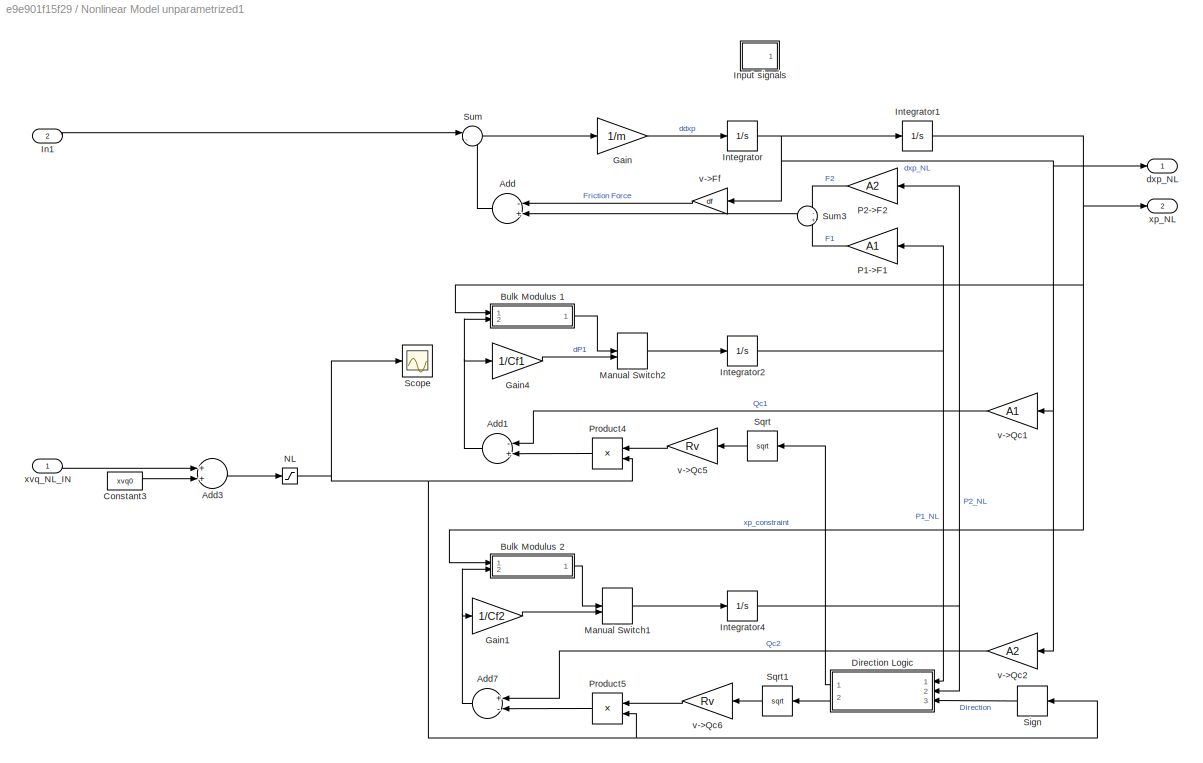
BLOCK [SubSystem] Nonlinear Model unparametrized1
  Ports = [2, 2]
  RequestExecContextInheritance = off
  Variant = off
BLOCK [Sum] Nonlinear Model unparametrized1/Add
  InputSameDT = off
  Inputs = -+
  OutDataTypeStr = Inherit: Inherit via internal rule
  Ports = [2, 1]
  SaturateOnIntegerOverflow = off
BLOCK [Sum] Nonlinear Model unparametrized1/Add1
  InputSameDT = off
  Inputs = -+
  OutDataTypeStr = Inherit: Inherit via internal rule
  Ports = [2, 1]
  SaturateOnIntegerOverflow = off
BLOCK [Sum] Nonlinear Model unparametrized1/Add3
  InputSameDT = off
  OutDataTypeStr = Inherit: Inherit via internal rule
  Ports = [2, 1]
  SaturateOnIntegerOverflow = off
BLOCK [Sum] Nonlinear Model unparametrized1/Add7
  InputSameDT = off
  Inputs = +-
  OutDataTypeStr = Inherit: Inherit via internal rule
  Ports = [2, 1]
  SaturateOnIntegerOverflow = off
BLOCK [SubSystem] Nonlinear Model unparametrized1/Bulk Modulus 1
  Commented = on
  Ports = [2, 1]
  RequestExecContextInheritance = off
  Variant = off
BLOCK [Sum] Nonlinear Model unparametrized1/Bulk Modulus 1/Add4
  InputSameDT = off
  OutDataTypeStr = Inherit: Inherit via internal rule
  Ports = [2, 1]
  SaturateOnIntegerOverflow = off
BLOCK [Constant] Nonlinear Model unparametrized1/Bulk Modulus 1/Constant2
  Value = smax/2
BLOCK [Inport] Nonlinear Model unparametrized1/Bulk Modulus 1/Displacement
  IconDisplay = Port number
BLOCK [Product] Nonlinear Model unparametrized1/Bulk Modulus 1/Divide
  InputSameDT = off
  Inputs = /*
  OutDataTypeStr = Inherit: Inherit via internal rule
  Ports = [2, 1]
  RndMeth = Floor
  SaturateOnIntegerOverflow = off
BLOCK [Outport] Nonlinear Model unparametrized1/Bulk Modulus 1/Dp1
  IconDisplay = Port number
BLOCK [Inport] Nonlinear Model unparametrized1/Bulk Modulus 1/Flow
  IconDisplay = Port number
  Port = 2
BLOCK [Gain] Nonlinear Model unparametrized1/Bulk Modulus 1/Gain2
  Gain = beta
  OutDataTypeStr = Inherit: Inherit via internal rule
  ParamDataTypeStr = Inherit: Inherit via internal rule
  SaturateOnIntegerOverflow = off
BLOCK [Gain] Nonlinear Model unparametrized1/Bulk Modulus 1/v->Qc3
  Gain = A1
  OutDataTypeStr = Inherit: Inherit via internal rule
  ParamDataTypeStr = Inherit: Inherit via internal rule
  SaturateOnIntegerOverflow = off
BLOCK [SubSystem] Nonlinear Model unparametrized1/Bulk Modulus 2
  Commented = on
  Ports = [2, 1]
  RequestExecContextInheritance = off
  Variant = off
BLOCK [Sum] Nonlinear Model unparametrized1/Bulk Modulus 2/Add4
  InputSameDT = off
  Inputs = +-
  OutDataTypeStr = Inherit: Inherit via internal rule
  Ports = [2, 1]
  SaturateOnIntegerOverflow = off
BLOCK [Constant] Nonlinear Model unparametrized1/Bulk Modulus 2/Constant2
  Value = smax/2
BLOCK [Inport] Nonlinear Model unparametrized1/Bulk Modulus 2/Displacement
  IconDisplay = Port number
BLOCK [Product] Nonlinear Model unparametrized1/Bulk Modulus 2/Divide
  InputSameDT = off
  Inputs = /*
  OutDataTypeStr = Inherit: Inherit via internal rule
  Ports = [2, 1]
  RndMeth = Floor
  SaturateOnIntegerOverflow = off
BLOCK [Outport] Nonlinear Model unparametrized1/Bulk Modulus 2/Dp2
  IconDisplay = Port number
BLOCK [Inport] Nonlinear Model unparametrized1/Bulk Modulus 2/Flow
  IconDisplay = Port number
  Port = 2
BLOCK [Gain] Nonlinear Model unparametrized1/Bulk Modulus 2/Gain2
  Gain = beta
  OutDataTypeStr = Inherit: Inherit via internal rule
  ParamDataTypeStr = Inherit: Inherit via internal rule
  SaturateOnIntegerOverflow = off
BLOCK [Gain] Nonlinear Model unparametrized1/Bulk Modulus 2/v->Qc3
  Gain = A2
  OutDataTypeStr = Inherit: Inherit via internal rule
  ParamDataTypeStr = Inherit: Inherit via internal rule
  SaturateOnIntegerOverflow = off
BLOCK [Constant] Nonlinear Model unparametrized1/Constant3
  Value = xvq0
BLOCK [SubSystem] Nonlinear Model unparametrized1/Direction Logic
  Ports = [3, 2]
  RequestExecContextInheritance = off
  Variant = off
BLOCK [Abs] Nonlinear Model unparametrized1/Direction Logic/Abs
  SaturateOnIntegerOverflow = off
  ZeroCross = off
BLOCK [Abs] Nonlinear Model unparametrized1/Direction Logic/Abs1
  SaturateOnIntegerOverflow = off
BLOCK [Sum] Nonlinear Model unparametrized1/Direction Logic/Add1
  InputSameDT = off
  Inputs = +-
  OutDataTypeStr = Inherit: Inherit via internal rule
  Ports = [2, 1]
  SaturateOnIntegerOverflow = off
BLOCK [Sum] Nonlinear Model unparametrized1/Direction Logic/Add2
  InputSameDT = off
  Inputs = -+
  OutDataTypeStr = Inherit: Inherit via internal rule
  Ports = [2, 1]
  SaturateOnIntegerOverflow = off
BLOCK [Sum] Nonlinear Model unparametrized1/Direction Logic/Add3
  InputSameDT = off
  Inputs = +-
  OutDataTypeStr = Inherit: Inherit via internal rule
  Ports = [2, 1]
  SaturateOnIntegerOverflow = off
BLOCK [Sum] Nonlinear Model unparametrized1/Direction Logic/Add4
  InputSameDT = off
  OutDataTypeStr = Inherit: Inherit via internal rule
  Ports = [2, 1]
  SaturateOnIntegerOverflow = off
BLOCK [Sum] Nonlinear Model unparametrized1/Direction Logic/Add5
  InputSameDT = off
  OutDataTypeStr = Inherit: Inherit via internal rule
  Ports = [2, 1]
  SaturateOnIntegerOverflow = off
BLOCK [Sum] Nonlinear Model unparametrized1/Direction Logic/Add9
  InputSameDT = off
  Inputs = +-
  OutDataTypeStr = Inherit: Inherit via internal rule
  Ports = [2, 1]
  SaturateOnIntegerOverflow = off
BLOCK [Reference] Nonlinear Model unparametrized1/Direction Logic/Compare To Zero  REF=simulink/Logic and Bit
Operations/Compare
To Zero
  Ports = [1, 1]
  SourceBlock = simulink/Logic and Bit\nOperations/Compare\nTo Zero
  SourceType = Compare To Zero
BLOCK [Scope] Nonlinear Model unparametrized1/Direction Logic/Logic Unit
  NumInputPorts = 1
  Ports = [1]
BLOCK [Logic] Nonlinear Model unparametrized1/Direction Logic/Logical Operator
  AllPortsSameDT = off
  Operator = NOT
  OutDataTypeStr = boolean
  Ports = [1, 1]
BLOCK [Mux] Nonlinear Model unparametrized1/Direction Logic/Mux
  DisplayOption = bar
  Inputs = 2
  Ports = [2, 1]
BLOCK [Mux] Nonlinear Model unparametrized1/Direction Logic/Mux1
  DisplayOption = bar
  Inputs = 2
  Ports = [2, 1]
BLOCK [Inport] Nonlinear Model unparametrized1/Direction Logic/P1_In
  IconDisplay = Port number
BLOCK [Outport] Nonlinear Model unparametrized1/Direction Logic/P1_Out
  IconDisplay = Port number
BLOCK [Inport] Nonlinear Model unparametrized1/Direction Logic/P2_In
  IconDisplay = Port number
  Port = 2
BLOCK [Outport] Nonlinear Model unparametrized1/Direction Logic/P2_Out
  IconDisplay = Port number
  Port = 2
BLOCK [Scope] Nonlinear Model unparametrized1/Direction Logic/Pressure Unit
  NumInputPorts = 1
  Ports = [1]
  ScopeSpecificationString = Simulink.scopes.TimeScopeBlockCfg('CurrentConfiguration', extmgr.ConfigurationSet(extmgr.Configuration('Core','General UI',true),extmgr.Configuration('Core','Source UI',true),extmgr.Configuration('Sources','WiredSimulink',true,'DataLoggingVariableName','ScopeData2'),extmgr.Configuration('Visuals','Time Domain',true,'SerializedDisplays',{struct('MinYLimReal','-10241994.52335','MaxYLimReal','2336022...<+1455ch>
BLOCK [Product] Nonlinear Model unparametrized1/Direction Logic/Product2
  InputSameDT = off
  OutDataTypeStr = Inherit: Inherit via internal rule
  Ports = [2, 1]
  RndMeth = Floor
  SaturateOnIntegerOverflow = off
BLOCK [Product] Nonlinear Model unparametrized1/Direction Logic/Product3
  InputSameDT = off
  OutDataTypeStr = Inherit: Inherit via internal rule
  Ports = [2, 1]
  RndMeth = Floor
  SaturateOnIntegerOverflow = off
BLOCK [Product] Nonlinear Model unparametrized1/Direction Logic/Product4
  InputSameDT = off
  OutDataTypeStr = Inherit: Inherit via internal rule
  Ports = [2, 1]
  RndMeth = Floor
  SaturateOnIntegerOverflow = off
BLOCK [Product] Nonlinear Model unparametrized1/Direction Logic/Product5
  InputSameDT = off
  OutDataTypeStr = Inherit: Inherit via internal rule
  Ports = [2, 1]
  RndMeth = Floor
  SaturateOnIntegerOverflow = off
BLOCK [Constant] Nonlinear Model unparametrized1/Direction Logic/Ps1
  Value = Ps
BLOCK [Constant] Nonlinear Model unparametrized1/Direction Logic/Ps2
  Value = Ps
BLOCK [Constant] Nonlinear Model unparametrized1/Direction Logic/Pt
  Value = Pt
BLOCK [Constant] Nonlinear Model unparametrized1/Direction Logic/Pt1
  Value = Pt
BLOCK [Inport] Nonlinear Model unparametrized1/Direction Logic/Valve_DIR
  IconDisplay = Port number
  Port = 3
BLOCK [Gain] Nonlinear Model unparametrized1/Gain
  Gain = 1/m
  OutDataTypeStr = Inherit: Inherit via internal rule
  ParamDataTypeStr = Inherit: Inherit via internal rule
  SaturateOnIntegerOverflow = off
BLOCK [Gain] Nonlinear Model unparametrized1/Gain1
  Gain = 1/Cf2
  OutDataTypeStr = Inherit: Inherit via internal rule
  ParamDataTypeStr = Inherit: Inherit via internal rule
  SaturateOnIntegerOverflow = off
BLOCK [Gain] Nonlinear Model unparametrized1/Gain4
  Gain = 1/Cf1
  OutDataTypeStr = Inherit: Inherit via internal rule
  ParamDataTypeStr = Inherit: Inherit via internal rule
  SaturateOnIntegerOverflow = off
BLOCK [Inport] Nonlinear Model unparametrized1/In1
  IconDisplay = Port number
  Port = 2
BLOCK [SubSystem] Nonlinear Model unparametrized1/Input signals
  Commented = on
  Ports = [0, 1]
  RequestExecContextInheritance = off
  Variant = off
BLOCK [ManualSwitch] Nonlinear Model unparametrized1/Input signals/CONST SW
BLOCK [Constant] Nonlinear Model unparametrized1/Input signals/Constant
  Value = -xvq0+0.001
BLOCK [Constant] Nonlinear Model unparametrized1/Input signals/DR_N
  Value = -1
BLOCK [Constant] Nonlinear Model unparametrized1/Input signals/DR_P 
BLOCK [ManualSwitch] Nonlinear Model unparametrized1/Input signals/Direction SW
BLOCK [Outport] Nonlinear Model unparametrized1/Input signals/Out1
  IconDisplay = Port number
BLOCK [Product] Nonlinear Model unparametrized1/Input signals/Product1
  InputSameDT = off
  OutDataTypeStr = Inherit: Inherit via internal rule
  Ports = [2, 1]
  RndMeth = Floor
  SaturateOnIntegerOverflow = off
BLOCK [ManualSwitch] Nonlinear Model unparametrized1/Input signals/STEP SW
  CurrentSetting = 0
BLOCK [Saturate] Nonlinear Model unparametrized1/Input signals/Saturation
  InputPortMap = u0
  LowerLimit = vn
  Ports = [1, 1]
  UpperLimit = vp
BLOCK [Sin] Nonlinear Model unparametrized1/Input signals/Sine Wave
  Amplitude = xvq0
  Frequency = 2*pi*1/2
  Phase = pi/2
  Ports = [0, 1]
  SampleTime = 0
BLOCK [DiscretePulseGenerator] Nonlinear Model unparametrized1/Input signals/Square Wave
  Amplitude = 0.0001
  Ports = [0, 1]
  PulseType = Time based
  PulseWidth = 50
BLOCK [Step] Nonlinear Model unparametrized1/Input signals/Step1
  After = 0.005
  SampleTime = 0
  Time = 0
BLOCK [ManualSwitch] Nonlinear Model unparametrized1/Input signals/WAVE SW
BLOCK [Display] Nonlinear Model unparametrized1/Input signals/xvq0
  Decimation = 1
  Ports = [1]
BLOCK [Integrator] Nonlinear Model unparametrized1/Integrator
  Ports = [1, 1]
BLOCK [Integrator] Nonlinear Model unparametrized1/Integrator1
  LimitOutput = on
  LowerSaturationLimit = -(smax/2-d)
  Ports = [1, 1]
  UpperSaturationLimit = (smax/2-d)
BLOCK [Integrator] Nonlinear Model unparametrized1/Integrator2
  Ports = [1, 1]
BLOCK [Integrator] Nonlinear Model unparametrized1/Integrator4
  Ports = [1, 1]
BLOCK [ManualSwitch] Nonlinear Model unparametrized1/Manual Switch1
  CurrentSetting = 0
BLOCK [ManualSwitch] Nonlinear Model unparametrized1/Manual Switch2
  CurrentSetting = 0
BLOCK [Saturate] Nonlinear Model unparametrized1/NL
  InputPortMap = u0
  LowerLimit = vn
  Ports = [1, 1]
  UpperLimit = vp
BLOCK [Gain] Nonlinear Model unparametrized1/P1->F1
  Gain = A1
  OutDataTypeStr = Inherit: Inherit via internal rule
  ParamDataTypeStr = Inherit: Inherit via internal rule
  SaturateOnIntegerOverflow = off
BLOCK [Gain] Nonlinear Model unparametrized1/P2->F2
  Gain = A2
  OutDataTypeStr = Inherit: Inherit via internal rule
  ParamDataTypeStr = Inherit: Inherit via internal rule
  SaturateOnIntegerOverflow = off
BLOCK [Product] Nonlinear Model unparametrized1/Product4
  InputSameDT = off
  OutDataTypeStr = Inherit: Inherit via internal rule
  Ports = [2, 1]
  RndMeth = Floor
  SaturateOnIntegerOverflow = off
BLOCK [Product] Nonlinear Model unparametrized1/Product5
  InputSameDT = off
  OutDataTypeStr = Inherit: Inherit via internal rule
  Ports = [2, 1]
  RndMeth = Floor
  SaturateOnIntegerOverflow = off
BLOCK [Scope] Nonlinear Model unparametrized1/Scope
  NumInputPorts = 1
  Ports = [1]
BLOCK [Signum] Nonlinear Model unparametrized1/Sign
BLOCK [Sqrt] Nonlinear Model unparametrized1/Sqrt
BLOCK [Sqrt] Nonlinear Model unparametrized1/Sqrt1
BLOCK [Sum] Nonlinear Model unparametrized1/Sum
  IconShape = round
  InputSameDT = off
  Inputs = |-+
  OutDataTypeStr = Inherit: Inherit via internal rule
  Ports = [2, 1]
  SaturateOnIntegerOverflow = off
BLOCK [Sum] Nonlinear Model unparametrized1/Sum3
  IconShape = round
  InputSameDT = off
  Inputs = -+
  OutDataTypeStr = Inherit: Inherit via internal rule
  Ports = [2, 1]
  SaturateOnIntegerOverflow = off
BLOCK [Outport] Nonlinear Model unparametrized1/dxp_NL
  IconDisplay = Port number
BLOCK [Gain] Nonlinear Model unparametrized1/v->Ff
  Gain = df
  OutDataTypeStr = Inherit: Inherit via internal rule
  ParamDataTypeStr = Inherit: Inherit via internal rule
  SaturateOnIntegerOverflow = off
BLOCK [Gain] Nonlinear Model unparametrized1/v->Qc1
  Gain = A1
  OutDataTypeStr = Inherit: Inherit via internal rule
  ParamDataTypeStr = Inherit: Inherit via internal rule
  SaturateOnIntegerOverflow = off
BLOCK [Gain] Nonlinear Model unparametrized1/v->Qc2
  Gain = A2
  OutDataTypeStr = Inherit: Inherit via internal rule
  ParamDataTypeStr = Inherit: Inherit via internal rule
  SaturateOnIntegerOverflow = off
BLOCK [Gain] Nonlinear Model unparametrized1/v->Qc5
  Gain = Rv
  OutDataTypeStr = Inherit: Inherit via internal rule
  ParamDataTypeStr = Inherit: Inherit via internal rule
  SaturateOnIntegerOverflow = off
BLOCK [Gain] Nonlinear Model unparametrized1/v->Qc6
  Gain = Rv
  OutDataTypeStr = Inherit: Inherit via internal rule
  ParamDataTypeStr = Inherit: Inherit via internal rule
  SaturateOnIntegerOverflow = off
BLOCK [Outport] Nonlinear Model unparametrized1/xp_NL
  IconDisplay = Port number
  Port = 2
BLOCK [Inport] Nonlinear Model unparametrized1/xvq_NL_IN
  IconDisplay = Port number
BLOCK [SubSystem] Position Reference
  Ports = [0, 1]
  RequestExecContextInheritance = off
  Variant = off
BLOCK [ManualSwitch] Position Reference/Manual Switch
BLOCK [ManualSwitch] Position Reference/Manual Switch1
BLOCK [Sin] Position Reference/Sine Wave
  Amplitude = 0.01
  Frequency = 2*pi/1
  Phase = pi/2
  Ports = [0, 1]
  SampleTime = 0
BLOCK [Step] Position Reference/Step
  After = 0.25
  SampleTime = 0
  Time = 0
BLOCK [Reference] Position Reference/XP_REF  REF=simulink/Sources/Ramp
  Ports = [0, 1]
  SourceBlock = simulink/Sources/Ramp
  SourceType = Ramp
BLOCK [Outport] Position Reference/xp_REF
  IconDisplay = Port number
BLOCK [Quantizer] Quantizer
  QuantizationInterval = qi
BLOCK [Quantizer] Quantizer1
  QuantizationInterval = qi
BLOCK [Quantizer] Quantizer2
  QuantizationInterval = qi
BLOCK [Quantizer] Quantizer3
  QuantizationInterval = qi
BLOCK [Sum] Sum1
  IconShape = round
  InputSameDT = off
  Inputs = |+-
  OutDataTypeStr = Inherit: Inherit via internal rule
  Ports = [2, 1]
  SaturateOnIntegerOverflow = off
BLOCK [Sum] Sum2
  IconShape = round
  InputSameDT = off
  Inputs = |+-
  OutDataTypeStr = Inherit: Inherit via internal rule
  Ports = [2, 1]
  SaturateOnIntegerOverflow = off
BLOCK [Sum] Sum3
  Commented = on
  IconShape = round
  InputSameDT = off
  Inputs = |+-
  OutDataTypeStr = Inherit: Inherit via internal rule
  Ports = [2, 1]
  SaturateOnIntegerOverflow = off
BLOCK [Sum] Sum5
  Commented = on
  IconShape = round
  InputSameDT = off
  Inputs = |+-
  OutDataTypeStr = Inherit: Inherit via internal rule
  Ports = [2, 1]
  SaturateOnIntegerOverflow = off
BLOCK [Sum] Sum6
  Commented = on
  IconShape = round
  InputSameDT = off
  Inputs = |+-
  OutDataTypeStr = Inherit: Inherit via internal rule
  Ports = [2, 1]
  SaturateOnIntegerOverflow = off
BLOCK [SubSystem] Velocity Reference
  Ports = [0, 1]
  RequestExecContextInheritance = off
  Variant = off
BLOCK [DiscretePulseGenerator] Velocity Reference/DXP_REF
  Amplitude = 0.5
  Period = 1
  Ports = [0, 1]
  PulseType = Time based
  PulseWidth = 50
BLOCK [ManualSwitch] Velocity Reference/Manual Switch
BLOCK [Sin] Velocity Reference/Sine Wave
  Amplitude = 0.5
  Frequency = 2*pi*1
  Ports = [0, 1]
  SampleTime = 0
BLOCK [Step] Velocity Reference/Step
  SampleTime = 0
  Time = 0
BLOCK [Outport] Velocity Reference/dxp_REF
  IconDisplay = Port number
BLOCK [Display] Velocity Reference/vq0
  Decimation = 1
  Ports = [1]
BLOCK [Scope] XP
  Commented = on
  NumInputPorts = 1
  Ports = [1]
  ScopeSpecificationString = Simulink.scopes.TimeScopeBlockCfg('CurrentConfiguration', extmgr.ConfigurationSet(extmgr.Configuration('Core','General UI',true),extmgr.Configuration('Core','Source UI',true),extmgr.Configuration('Sources','WiredSimulink',true,'DataLoggingVariableName','ScopeData1'),extmgr.Configuration('Visuals','Time Domain',true,'SerializedDisplays',{struct('MinYLimReal','-0.01248','MaxYLimReal','0.1123','YLabe...<+1666ch>
BLOCK [Scope] XP_CONTROLLED
  NumInputPorts = 1
  Ports = [1]
  ScopeSpecificationString = Simulink.scopes.TimeScopeBlockCfg('CurrentConfiguration', extmgr.ConfigurationSet(extmgr.Configuration('Core','General UI',true),extmgr.Configuration('Core','Source UI',true),extmgr.Configuration('Sources','WiredSimulink',true,'DataLoggingVariableName','ScopeData8'),extmgr.Configuration('Visuals','Time Domain',true,'SerializedDisplays',{struct('MinYLimReal','-0.04362','MaxYLimReal','0.39263','YLab...<+1728ch>
BLOCK [ZeroOrderHold] Zero-Order Hold
  SampleTime = Ts
BLOCK [ZeroOrderHold] Zero-Order Hold1
  SampleTime = Ts
BLOCK [ZeroOrderHold] Zero-Order Hold2
  Commented = on
  SampleTime = Ts
BLOCK [ZeroOrderHold] Zero-Order Hold3
  SampleTime = Ts
BLOCK [ZeroOrderHold] Zero-Order Hold4
  Commented = on
  SampleTime = Ts
BLOCK [ZeroOrderHold] Zero-Order Hold5
  SampleTime = Ts
ANNOTATION (root): NONLINEAR MODEL
NET Add3:1 -> H_FFv1:1, H_FFv:1, Manual Switch11:1, Manual Switch1:2, Manual Switch9:2, Mux4:1, Sum6:1, Zero-Order Hold4:1
NET Add5:1 -> H_Cv:1, Mux4:2
LINE Constant3:1 -> Add3:2
LINE Constant7:1 -> Add5:2
LINE Fe/Force Signal SW:1 -> Fe/INP_Fe:1
NET Fe/Force f_e:1 -> Fe/Force Signal SW:1, Fe/fe0:1
LINE Fe/Step:1 -> Fe/Force Signal SW:2
NET Fe:1 -> Linear Model parametrized:2, Linear Model unparametrized:2, Nonlinear Model parametrized:2, Nonlinear Model unparametrized1:2, Nonlinear Model unparametrized:2
NET H_Cp/Filter Coefficient:1 -> H_Cp/Filter:1, H_Cp/Sum1:2
LINE H_Cp/Filter:1 -> H_Cp/SumD:2
LINE H_Cp/Gain1:1 -> H_Cp/SumD:1
LINE H_Cp/Gain4:1 -> H_Cp/Integrator1:1
LINE H_Cp/Integrator1:1 -> H_Cp/Sum1:3
LINE H_Cp/Manual Switch:1 -> H_Cp/u_C:1
LINE H_Cp/P1:1 -> H_Cp/Sum1:1
LINE H_Cp/Sum1:1 -> H_Cp/Manual Switch:2
LINE H_Cp/SumD:1 -> H_Cp/Filter Coefficient:1
LINE H_Cp/Transfer Fcn:1 -> H_Cp/Manual Switch:1
NET H_Cp/vq:1 -> H_Cp/Gain1:1, H_Cp/Gain4:1, H_Cp/P1:1, H_Cp/Transfer Fcn:1
NET H_Cp:1 -> Manual Switch5:1, Zero-Order Hold1:1
LINE H_Cv/AW:1 -> H_Cv/Gain2:1
NET H_Cv/Filter Coefficient:1 -> H_Cv/Filter:1, H_Cv/Sum1:2
LINE H_Cv/Filter:1 -> H_Cv/SumD:2
LINE H_Cv/Gain1:1 -> H_Cv/SumD:1
LINE H_Cv/Gain2:1 -> H_Cv/Sum2:2
LINE H_Cv/Gain4:1 -> H_Cv/Sum2:1
NET H_Cv/Integrator1:1 -> H_Cv/AW_INT:1, H_Cv/Sum1:3
LINE H_Cv/Manual Switch:1 -> H_Cv/u_C:1
LINE H_Cv/P1:1 -> H_Cv/Sum1:1
LINE H_Cv/Sum1:1 -> H_Cv/Manual Switch:2
LINE H_Cv/Sum2:1 -> H_Cv/Integrator1:1
LINE H_Cv/SumD:1 -> H_Cv/Filter Coefficient:1
LINE H_Cv/Transfer Fcn:1 -> H_Cv/Manual Switch:1
NET H_Cv/vq:1 -> H_Cv/Gain1:1, H_Cv/Gain4:1, H_Cv/P1:1, H_Cv/Transfer Fcn:1
NET H_Cv1/Filter Coefficient:1 -> H_Cv1/Filter:1, H_Cv1/Sum1:2
LINE H_Cv1/Filter:1 -> H_Cv1/SumD:2
LINE H_Cv1/Gain1:1 -> H_Cv1/SumD:1
LINE H_Cv1/Gain4:1 -> H_Cv1/Integrator1:1
NET H_Cv1/Integrator1:1 -> H_Cv1/AW_INT:1, H_Cv1/Sum1:3
LINE H_Cv1/Manual Switch:1 -> H_Cv1/u_C:1
LINE H_Cv1/P1:1 -> H_Cv1/Sum1:1
LINE H_Cv1/Sum1:1 -> H_Cv1/Manual Switch:2
LINE H_Cv1/SumD:1 -> H_Cv1/Filter Coefficient:1
LINE H_Cv1/Transfer Fcn:1 -> H_Cv1/Manual Switch:1
NET H_Cv1/vq:1 -> H_Cv1/Gain1:1, H_Cv1/Gain4:1, H_Cv1/P1:1, H_Cv1/Transfer Fcn:1
LINE H_Cv1:1 -> Manual Switch12:2
NET H_Cv:1 -> Manual Switch2:1, Quantizer2:1
NET H_FFp/Filter Coefficient:1 -> H_FFp/Filter:1, H_FFp/Sum2:2
LINE H_FFp/Filter:1 -> H_FFp/SumD:2
LINE H_FFp/Gain2:1 -> H_FFp/SumD:1
LINE H_FFp/Gain3:1 -> H_FFp/Integrator:1
LINE H_FFp/Integrator:1 -> H_FFp/Sum2:3
LINE H_FFp/Manual Switch1:1 -> H_FFp/u_FF:1
LINE H_FFp/Manual Switch:1 -> H_FFp/Manual Switch1:1
LINE H_FFp/P:1 -> H_FFp/Sum2:1
LINE H_FFp/PID Controller:1 -> H_FFp/Manual Switch1:2
LINE H_FFp/Sum2:1 -> H_FFp/Manual Switch:2
LINE H_FFp/SumD:1 -> H_FFp/Filter Coefficient:1
LINE H_FFp/Transfer Fcn:1 -> H_FFp/Manual Switch:1
NET H_FFp/ref:1 -> H_FFp/Gain2:1, H_FFp/Gain3:1, H_FFp/P:1, H_FFp/PID Controller:1, H_FFp/Transfer Fcn:1
LINE H_FFp:1 -> Zero-Order Hold5:1
LINE H_FFv/Derivative:1 -> H_FFv/Sum2:2
NET H_FFv/Gain1:1 -> H_FFv/Gain2:1, H_FFv/Gain3:1, H_FFv/P:1
LINE H_FFv/Gain2:1 -> H_FFv/Derivative:1
LINE H_FFv/Gain3:1 -> H_FFv/Integrator:1
LINE H_FFv/Integrator:1 -> H_FFv/Sum2:3
LINE H_FFv/Manual Switch1:1 -> H_FFv/u_FF:1
LINE H_FFv/Manual Switch:1 -> H_FFv/Manual Switch1:1
LINE H_FFv/P:1 -> H_FFv/Sum2:1
LINE H_FFv/PID Controller:1 -> H_FFv/Manual Switch1:2
LINE H_FFv/Sum2:1 -> H_FFv/Manual Switch:2
LINE H_FFv/Transfer Fcn:1 -> H_FFv/Manual Switch:1
NET H_FFv/ref:1 -> H_FFv/Gain1:1, H_FFv/PID Controller:1, H_FFv/Transfer Fcn:1
LINE H_FFv1/Derivative:1 -> H_FFv1/Sum2:2
NET H_FFv1/Gain1:1 -> H_FFv1/Gain2:1, H_FFv1/Gain3:1, H_FFv1/P:1
LINE H_FFv1/Gain2:1 -> H_FFv1/Derivative:1
LINE H_FFv1/Gain3:1 -> H_FFv1/Integrator:1
LINE H_FFv1/Integrator:1 -> H_FFv1/Sum2:3
LINE H_FFv1/Manual Switch1:1 -> H_FFv1/u_FF:1
LINE H_FFv1/Manual Switch:1 -> H_FFv1/Manual Switch1:1
LINE H_FFv1/P:1 -> H_FFv1/Sum2:1
LINE H_FFv1/PID Controller:1 -> H_FFv1/Manual Switch1:2
LINE H_FFv1/Sum2:1 -> H_FFv1/Manual Switch:2
LINE H_FFv1/Transfer Fcn:1 -> H_FFv1/Manual Switch:1
NET H_FFv1/ref:1 -> H_FFv1/Gain1:1, H_FFv1/PID Controller:1, H_FFv1/Transfer Fcn:1
LINE H_FFv1:1 -> Manual Switch11:2
NET H_FFv:1 -> Manual Switch8:2, Quantizer:1
LINE Linear Model parametrized/Add3:1 -> Linear Model parametrized/Mux1:1
LINE Linear Model parametrized/Add4:1 -> Linear Model parametrized/Mux1:2
NET Linear Model parametrized/Add5:1 -> Linear Model parametrized/Integrator3:1, Linear Model parametrized/dxp_L:1
LINE Linear Model parametrized/Constant3:1 -> Linear Model parametrized/Add3:2
LINE Linear Model parametrized/Constant4:1 -> Linear Model parametrized/Add4:2
LINE Linear Model parametrized/Constant5:1 -> Linear Model parametrized/Add8:2
LINE Linear Model parametrized/Constant6:1 -> Linear Model parametrized/Add6:2
LINE Linear Model parametrized/Constant7:1 -> Linear Model parametrized/Add5:2
LINE Linear Model parametrized/Demux:1 -> Linear Model parametrized/Add5:1
LINE Linear Model parametrized/Demux:2 -> Linear Model parametrized/Add6:1
LINE Linear Model parametrized/Demux:3 -> Linear Model parametrized/Add8:1
LINE Linear Model parametrized/INP_Fe:1 -> Linear Model parametrized/Add4:1
LINE Linear Model parametrized/INP_xvq:1 -> Linear Model parametrized/Add3:1
LINE Linear Model parametrized/Integrator3:1 -> Linear Model parametrized/xp_L:1
LINE Linear Model parametrized/Mux1:1 -> Linear Model parametrized/State-Space:1
LINE Linear Model parametrized/State-Space:1 -> Linear Model parametrized/Demux:1
LINE Linear Model parametrized:1 -> Mux:2
LINE Linear Model parametrized:2 -> Mux1:2
LINE Linear Model unparametrized/Add3:1 -> Linear Model unparametrized/Mux1:1
LINE Linear Model unparametrized/Add4:1 -> Linear Model unparametrized/Mux1:2
NET Linear Model unparametrized/Add5:1 -> Linear Model unparametrized/Integrator3:1, Linear Model unparametrized/dxp_L:1
LINE Linear Model unparametrized/Constant3:1 -> Linear Model unparametrized/Add3:2
LINE Linear Model unparametrized/Constant4:1 -> Linear Model unparametrized/Add4:2
LINE Linear Model unparametrized/Constant5:1 -> Linear Model unparametrized/Add8:2
LINE Linear Model unparametrized/Constant6:1 -> Linear Model unparametrized/Add6:2
LINE Linear Model unparametrized/Constant7:1 -> Linear Model unparametrized/Add5:2
LINE Linear Model unparametrized/Demux:1 -> Linear Model unparametrized/Add5:1
LINE Linear Model unparametrized/Demux:2 -> Linear Model unparametrized/Add6:1
LINE Linear Model unparametrized/Demux:3 -> Linear Model unparametrized/Add8:1
LINE Linear Model unparametrized/INP_Fe:1 -> Linear Model unparametrized/Add4:1
NET Linear Model unparametrized/INP_xvq:1 -> Linear Model unparametrized/Manual Switch3:1, Linear Model unparametrized/NONLINEAR ELEMENT:1
LINE Linear Model unparametrized/Integrator3:1 -> Linear Model unparametrized/xp_L:1
LINE Linear Model unparametrized/Manual Switch3:1 -> Linear Model unparametrized/Add3:1
LINE Linear Model unparametrized/Mux1:1 -> Linear Model unparametrized/State-Space:1
LINE Linear Model unparametrized/NONLINEAR ELEMENT:1 -> Linear Model unparametrized/Manual Switch3:2
LINE Linear Model unparametrized/State-Space:1 -> Linear Model unparametrized/Demux:1
LINE Linear Model unparametrized:1 -> Mux:1
NET Linear Model unparametrized:2 -> DXP_UNCONTROLLED:1, Manual Switch3:1, Mux1:1, Zero-Order Hold2:1
LINE Manual Switch11:1 -> Sum5:1
LINE Manual Switch12:1 -> Sum5:2
LINE Manual Switch1:1 -> Sum1:1
LINE Manual Switch2:1 -> Manual Switch4:2
LINE Manual Switch3:1 -> Sum3:2
LINE Manual Switch4:1 -> Sum1:2
LINE Manual Switch5:1 -> Manual Switch7:2
LINE Manual Switch6:1 -> Sum2:1
LINE Manual Switch7:1 -> Sum2:2
LINE Manual Switch8:1 -> Manual Switch1:1
LINE Manual Switch9:1 -> Sum3:1
LINE Manual Switch:1 -> Add3:1
LINE Mux1:1 -> DXP:1
LINE Mux2:1 -> DXP_NL:1
LINE Mux3:1 -> CONTROL:1
LINE Mux4:1 -> DXP_CONTROLLED:1
LINE Mux:1 -> XP:1
LINE NL:1 -> Manual Switch6:2
NET Nonlinear Model parametrized/Add1:1 -> Nonlinear Model parametrized/Bulk Modulus 1:2, Nonlinear Model parametrized/Gain4:1
NET Nonlinear Model parametrized/Add7:1 -> Nonlinear Model parametrized/Bulk Modulus 2:2, Nonlinear Model parametrized/Gain1:1
LINE Nonlinear Model parametrized/Add:1 -> Nonlinear Model parametrized/Sum:2
LINE Nonlinear Model parametrized/Bulk Modulus 1/Add4:1 -> Nonlinear Model parametrized/Bulk Modulus 1/v->Qc3:1
LINE Nonlinear Model parametrized/Bulk Modulus 1/Constant2:1 -> Nonlinear Model parametrized/Bulk Modulus 1/Add4:1
LINE Nonlinear Model parametrized/Bulk Modulus 1/Displacement:1 -> Nonlinear Model parametrized/Bulk Modulus 1/Add4:2
LINE Nonlinear Model parametrized/Bulk Modulus 1/Divide:1 -> Nonlinear Model parametrized/Bulk Modulus 1/Dp1:1
LINE Nonlinear Model parametrized/Bulk Modulus 1/Flow:1 -> Nonlinear Model parametrized/Bulk Modulus 1/Gain2:1
LINE Nonlinear Model parametrized/Bulk Modulus 1/Gain2:1 -> Nonlinear Model parametrized/Bulk Modulus 1/Divide:2
LINE Nonlinear Model parametrized/Bulk Modulus 1/v->Qc3:1 -> Nonlinear Model parametrized/Bulk Modulus 1/Divide:1
LINE Nonlinear Model parametrized/Bulk Modulus 1:1 -> Nonlinear Model parametrized/Manual Switch2:1
LINE Nonlinear Model parametrized/Bulk Modulus 2/Add4:1 -> Nonlinear Model parametrized/Bulk Modulus 2/v->Qc3:1
LINE Nonlinear Model parametrized/Bulk Modulus 2/Constant2:1 -> Nonlinear Model parametrized/Bulk Modulus 2/Add4:1
LINE Nonlinear Model parametrized/Bulk Modulus 2/Displacement:1 -> Nonlinear Model parametrized/Bulk Modulus 2/Add4:2
LINE Nonlinear Model parametrized/Bulk Modulus 2/Divide:1 -> Nonlinear Model parametrized/Bulk Modulus 2/Dp2:1
LINE Nonlinear Model parametrized/Bulk Modulus 2/Flow:1 -> Nonlinear Model parametrized/Bulk Modulus 2/Gain2:1
LINE Nonlinear Model parametrized/Bulk Modulus 2/Gain2:1 -> Nonlinear Model parametrized/Bulk Modulus 2/Divide:2
LINE Nonlinear Model parametrized/Bulk Modulus 2/v->Qc3:1 -> Nonlinear Model parametrized/Bulk Modulus 2/Divide:1
LINE Nonlinear Model parametrized/Bulk Modulus 2:1 -> Nonlinear Model parametrized/Manual Switch1:1
LINE Nonlinear Model parametrized/Direction Logic/Abs1:1 -> Nonlinear Model parametrized/Direction Logic/P2_Out:1
LINE Nonlinear Model parametrized/Direction Logic/Abs:1 -> Nonlinear Model parametrized/Direction Logic/P1_Out:1
LINE Nonlinear Model parametrized/Direction Logic/Add1:1 -> Nonlinear Model parametrized/Direction Logic/Product3:1
LINE Nonlinear Model parametrized/Direction Logic/Add2:1 -> Nonlinear Model parametrized/Direction Logic/Product4:1
LINE Nonlinear Model parametrized/Direction Logic/Add3:1 -> Nonlinear Model parametrized/Direction Logic/Product5:1
NET Nonlinear Model parametrized/Direction Logic/Add4:1 -> Nonlinear Model parametrized/Direction Logic/Abs:1, Nonlinear Model parametrized/Direction Logic/Mux1:1
NET Nonlinear Model parametrized/Direction Logic/Add5:1 -> Nonlinear Model parametrized/Direction Logic/Abs1:1, Nonlinear Model parametrized/Direction Logic/Mux1:2
LINE Nonlinear Model parametrized/Direction Logic/Add9:1 -> Nonlinear Model parametrized/Direction Logic/Product2:1
NET Nonlinear Model parametrized/Direction Logic/Compare To Zero:1 -> Nonlinear Model parametrized/Direction Logic/Logical Operator:1, Nonlinear Model parametrized/Direction Logic/Mux:1, Nonlinear Model parametrized/Direction Logic/Product2:2, Nonlinear Model parametrized/Direction Logic/Product4:2
NET Nonlinear Model parametrized/Direction Logic/Logical Operator:1 -> Nonlinear Model parametrized/Direction Logic/Mux:2, Nonlinear Model parametrized/Direction Logic/Product3:2, Nonlinear Model parametrized/Direction Logic/Product5:2
LINE Nonlinear Model parametrized/Direction Logic/Mux1:1 -> Nonlinear Model parametrized/Direction Logic/Pressure Unit:1
LINE Nonlinear Model parametrized/Direction Logic/Mux:1 -> Nonlinear Model parametrized/Direction Logic/Logic Unit:1
NET Nonlinear Model parametrized/Direction Logic/P1_In:1 -> Nonlinear Model parametrized/Direction Logic/Add1:2, Nonlinear Model parametrized/Direction Logic/Add9:2
NET Nonlinear Model parametrized/Direction Logic/P2_In:1 -> Nonlinear Model parametrized/Direction Logic/Add2:2, Nonlinear Model parametrized/Direction Logic/Add3:2
LINE Nonlinear Model parametrized/Direction Logic/Product2:1 -> Nonlinear Model parametrized/Direction Logic/Add4:1
LINE Nonlinear Model parametrized/Direction Logic/Product3:1 -> Nonlinear Model parametrized/Direction Logic/Add4:2
LINE Nonlinear Model parametrized/Direction Logic/Product4:1 -> Nonlinear Model parametrized/Direction Logic/Add5:1
LINE Nonlinear Model parametrized/Direction Logic/Product5:1 -> Nonlinear Model parametrized/Direction Logic/Add5:2
LINE Nonlinear Model parametrized/Direction Logic/Ps1:1 -> Nonlinear Model parametrized/Direction Logic/Add9:1
LINE Nonlinear Model parametrized/Direction Logic/Ps2:1 -> Nonlinear Model parametrized/Direction Logic/Add3:1
LINE Nonlinear Model parametrized/Direction Logic/Pt1:1 -> Nonlinear Model parametrized/Direction Logic/Add2:1
LINE Nonlinear Model parametrized/Direction Logic/Pt:1 -> Nonlinear Model parametrized/Direction Logic/Add1:1
LINE Nonlinear Model parametrized/Direction Logic/Valve_DIR:1 -> Nonlinear Model parametrized/Direction Logic/Compare To Zero:1
LINE Nonlinear Model parametrized/Direction Logic:1 -> Nonlinear Model parametrized/Sqrt:1
LINE Nonlinear Model parametrized/Direction Logic:2 -> Nonlinear Model parametrized/Sqrt1:1
LINE Nonlinear Model parametrized/Gain1:1 -> Nonlinear Model parametrized/Manual Switch1:2
LINE Nonlinear Model parametrized/Gain4:1 -> Nonlinear Model parametrized/Manual Switch2:2
LINE Nonlinear Model parametrized/Gain:1 -> Nonlinear Model parametrized/Integrator:1
LINE Nonlinear Model parametrized/In1:1 -> Nonlinear Model parametrized/Sum:1
LINE Nonlinear Model parametrized/Input signals/CONST SW:1 -> Nonlinear Model parametrized/Input signals/STEP SW:2
NET Nonlinear Model parametrized/Input signals/Constant:1 -> Nonlinear Model parametrized/Input signals/CONST SW:1, Nonlinear Model parametrized/Input signals/xvq0:1
LINE Nonlinear Model parametrized/Input signals/DR_N:1 -> Nonlinear Model parametrized/Input signals/Direction SW:1
LINE Nonlinear Model parametrized/Input signals/DR_P :1 -> Nonlinear Model parametrized/Input signals/Direction SW:2
LINE Nonlinear Model parametrized/Input signals/Direction SW:1 -> Nonlinear Model parametrized/Input signals/Product1:1
LINE Nonlinear Model parametrized/Input signals/Product1:1 -> Nonlinear Model parametrized/Input signals/Saturation:1
LINE Nonlinear Model parametrized/Input signals/STEP SW:1 -> Nonlinear Model parametrized/Input signals/Product1:2
LINE Nonlinear Model parametrized/Input signals/Saturation:1 -> Nonlinear Model parametrized/Input signals/Out1:1
LINE Nonlinear Model parametrized/Input signals/Sine Wave:1 -> Nonlinear Model parametrized/Input signals/WAVE SW:1
LINE Nonlinear Model parametrized/Input signals/Square Wave:1 -> Nonlinear Model parametrized/Input signals/WAVE SW:2
LINE Nonlinear Model parametrized/Input signals/Step1:1 -> Nonlinear Model parametrized/Input signals/STEP SW:1
LINE Nonlinear Model parametrized/Input signals/WAVE SW:1 -> Nonlinear Model parametrized/Input signals/CONST SW:2
NET Nonlinear Model parametrized/Integrator1:1 -> Nonlinear Model parametrized/Bulk Modulus 1:1, Nonlinear Model parametrized/Bulk Modulus 2:1, Nonlinear Model parametrized/xp_NL:1
NET Nonlinear Model parametrized/Integrator2:1 -> Nonlinear Model parametrized/Direction Logic:1, Nonlinear Model parametrized/P1->F1:1
NET Nonlinear Model parametrized/Integrator4:1 -> Nonlinear Model parametrized/Direction Logic:2, Nonlinear Model parametrized/P2->F2:1
NET Nonlinear Model parametrized/Integrator:1 -> Nonlinear Model parametrized/Integrator1:1, Nonlinear Model parametrized/dxp_NL:1, Nonlinear Model parametrized/v->Ff:1, Nonlinear Model parametrized/v->Qc1:1, Nonlinear Model parametrized/v->Qc2:1
LINE Nonlinear Model parametrized/Manual Switch1:1 -> Nonlinear Model parametrized/Integrator4:1
LINE Nonlinear Model parametrized/Manual Switch2:1 -> Nonlinear Model parametrized/Integrator2:1
LINE Nonlinear Model parametrized/P1->F1:1 -> Nonlinear Model parametrized/Sum3:2
LINE Nonlinear Model parametrized/P2->F2:1 -> Nonlinear Model parametrized/Sum3:1
LINE Nonlinear Model parametrized/Product4:1 -> Nonlinear Model parametrized/Add1:2
LINE Nonlinear Model parametrized/Product5:1 -> Nonlinear Model parametrized/Add7:2
NET Nonlinear Model parametrized/Saturation:1 -> Nonlinear Model parametrized/Product4:2, Nonlinear Model parametrized/Product5:2, Nonlinear Model parametrized/Scope:1, Nonlinear Model parametrized/Sign:1
LINE Nonlinear Model parametrized/Sign:1 -> Nonlinear Model parametrized/Direction Logic:3
LINE Nonlinear Model parametrized/Sqrt1:1 -> Nonlinear Model parametrized/v->Qc6:1
LINE Nonlinear Model parametrized/Sqrt:1 -> Nonlinear Model parametrized/v->Qc5:1
LINE Nonlinear Model parametrized/Sum3:1 -> Nonlinear Model parametrized/Add:2
LINE Nonlinear Model parametrized/Sum:1 -> Nonlinear Model parametrized/Gain:1
LINE Nonlinear Model parametrized/v->Ff:1 -> Nonlinear Model parametrized/Add:1
LINE Nonlinear Model parametrized/v->Qc1:1 -> Nonlinear Model parametrized/Add1:1
LINE Nonlinear Model parametrized/v->Qc2:1 -> Nonlinear Model parametrized/Add7:1
LINE Nonlinear Model parametrized/v->Qc5:1 -> Nonlinear Model parametrized/Product4:1
LINE Nonlinear Model parametrized/v->Qc6:1 -> Nonlinear Model parametrized/Product5:1
LINE Nonlinear Model parametrized/xvq_NL_IN:1 -> Nonlinear Model parametrized/Saturation:1
NET Nonlinear Model parametrized:1 -> H_Cv1:1, Manual Switch12:1, Mux2:2
NET Nonlinear Model unparametrized/Add1:1 -> Nonlinear Model unparametrized/Bulk Modulus 1:2, Nonlinear Model unparametrized/Gain4:1
NET Nonlinear Model unparametrized/Add7:1 -> Nonlinear Model unparametrized/Bulk Modulus 2:2, Nonlinear Model unparametrized/Gain1:1
LINE Nonlinear Model unparametrized/Add:1 -> Nonlinear Model unparametrized/Sum:2
LINE Nonlinear Model unparametrized/Bulk Modulus 1/Add4:1 -> Nonlinear Model unparametrized/Bulk Modulus 1/v->Qc3:1
LINE Nonlinear Model unparametrized/Bulk Modulus 1/Constant2:1 -> Nonlinear Model unparametrized/Bulk Modulus 1/Add4:1
LINE Nonlinear Model unparametrized/Bulk Modulus 1/Displacement:1 -> Nonlinear Model unparametrized/Bulk Modulus 1/Add4:2
LINE Nonlinear Model unparametrized/Bulk Modulus 1/Divide:1 -> Nonlinear Model unparametrized/Bulk Modulus 1/Dp1:1
LINE Nonlinear Model unparametrized/Bulk Modulus 1/Flow:1 -> Nonlinear Model unparametrized/Bulk Modulus 1/Gain2:1
LINE Nonlinear Model unparametrized/Bulk Modulus 1/Gain2:1 -> Nonlinear Model unparametrized/Bulk Modulus 1/Divide:2
LINE Nonlinear Model unparametrized/Bulk Modulus 1/v->Qc3:1 -> Nonlinear Model unparametrized/Bulk Modulus 1/Divide:1
LINE Nonlinear Model unparametrized/Bulk Modulus 1:1 -> Nonlinear Model unparametrized/Manual Switch2:1
LINE Nonlinear Model unparametrized/Bulk Modulus 2/Add4:1 -> Nonlinear Model unparametrized/Bulk Modulus 2/v->Qc3:1
LINE Nonlinear Model unparametrized/Bulk Modulus 2/Constant2:1 -> Nonlinear Model unparametrized/Bulk Modulus 2/Add4:1
LINE Nonlinear Model unparametrized/Bulk Modulus 2/Displacement:1 -> Nonlinear Model unparametrized/Bulk Modulus 2/Add4:2
LINE Nonlinear Model unparametrized/Bulk Modulus 2/Divide:1 -> Nonlinear Model unparametrized/Bulk Modulus 2/Dp2:1
LINE Nonlinear Model unparametrized/Bulk Modulus 2/Flow:1 -> Nonlinear Model unparametrized/Bulk Modulus 2/Gain2:1
LINE Nonlinear Model unparametrized/Bulk Modulus 2/Gain2:1 -> Nonlinear Model unparametrized/Bulk Modulus 2/Divide:2
LINE Nonlinear Model unparametrized/Bulk Modulus 2/v->Qc3:1 -> Nonlinear Model unparametrized/Bulk Modulus 2/Divide:1
LINE Nonlinear Model unparametrized/Bulk Modulus 2:1 -> Nonlinear Model unparametrized/Manual Switch1:1
LINE Nonlinear Model unparametrized/Direction Logic/Abs1:1 -> Nonlinear Model unparametrized/Direction Logic/P2_Out:1
LINE Nonlinear Model unparametrized/Direction Logic/Abs:1 -> Nonlinear Model unparametrized/Direction Logic/P1_Out:1
LINE Nonlinear Model unparametrized/Direction Logic/Add1:1 -> Nonlinear Model unparametrized/Direction Logic/Product3:1
LINE Nonlinear Model unparametrized/Direction Logic/Add2:1 -> Nonlinear Model unparametrized/Direction Logic/Product4:1
LINE Nonlinear Model unparametrized/Direction Logic/Add3:1 -> Nonlinear Model unparametrized/Direction Logic/Product5:1
NET Nonlinear Model unparametrized/Direction Logic/Add4:1 -> Nonlinear Model unparametrized/Direction Logic/Abs:1, Nonlinear Model unparametrized/Direction Logic/Mux1:1
NET Nonlinear Model unparametrized/Direction Logic/Add5:1 -> Nonlinear Model unparametrized/Direction Logic/Abs1:1, Nonlinear Model unparametrized/Direction Logic/Mux1:2
LINE Nonlinear Model unparametrized/Direction Logic/Add9:1 -> Nonlinear Model unparametrized/Direction Logic/Product2:1
NET Nonlinear Model unparametrized/Direction Logic/Compare To Zero:1 -> Nonlinear Model unparametrized/Direction Logic/Logical Operator:1, Nonlinear Model unparametrized/Direction Logic/Mux:1, Nonlinear Model unparametrized/Direction Logic/Product2:2, Nonlinear Model unparametrized/Direction Logic/Product4:2
NET Nonlinear Model unparametrized/Direction Logic/Logical Operator:1 -> Nonlinear Model unparametrized/Direction Logic/Mux:2, Nonlinear Model unparametrized/Direction Logic/Product3:2, Nonlinear Model unparametrized/Direction Logic/Product5:2
LINE Nonlinear Model unparametrized/Direction Logic/Mux1:1 -> Nonlinear Model unparametrized/Direction Logic/Pressure Unit:1
LINE Nonlinear Model unparametrized/Direction Logic/Mux:1 -> Nonlinear Model unparametrized/Direction Logic/Logic Unit:1
NET Nonlinear Model unparametrized/Direction Logic/P1_In:1 -> Nonlinear Model unparametrized/Direction Logic/Add1:2, Nonlinear Model unparametrized/Direction Logic/Add9:2
NET Nonlinear Model unparametrized/Direction Logic/P2_In:1 -> Nonlinear Model unparametrized/Direction Logic/Add2:2, Nonlinear Model unparametrized/Direction Logic/Add3:2
LINE Nonlinear Model unparametrized/Direction Logic/Product2:1 -> Nonlinear Model unparametrized/Direction Logic/Add4:1
LINE Nonlinear Model unparametrized/Direction Logic/Product3:1 -> Nonlinear Model unparametrized/Direction Logic/Add4:2
LINE Nonlinear Model unparametrized/Direction Logic/Product4:1 -> Nonlinear Model unparametrized/Direction Logic/Add5:1
LINE Nonlinear Model unparametrized/Direction Logic/Product5:1 -> Nonlinear Model unparametrized/Direction Logic/Add5:2
LINE Nonlinear Model unparametrized/Direction Logic/Ps1:1 -> Nonlinear Model unparametrized/Direction Logic/Add9:1
LINE Nonlinear Model unparametrized/Direction Logic/Ps2:1 -> Nonlinear Model unparametrized/Direction Logic/Add3:1
LINE Nonlinear Model unparametrized/Direction Logic/Pt1:1 -> Nonlinear Model unparametrized/Direction Logic/Add2:1
LINE Nonlinear Model unparametrized/Direction Logic/Pt:1 -> Nonlinear Model unparametrized/Direction Logic/Add1:1
LINE Nonlinear Model unparametrized/Direction Logic/Valve_DIR:1 -> Nonlinear Model unparametrized/Direction Logic/Compare To Zero:1
LINE Nonlinear Model unparametrized/Direction Logic:1 -> Nonlinear Model unparametrized/Sqrt:1
LINE Nonlinear Model unparametrized/Direction Logic:2 -> Nonlinear Model unparametrized/Sqrt1:1
LINE Nonlinear Model unparametrized/Gain1:1 -> Nonlinear Model unparametrized/Manual Switch1:2
LINE Nonlinear Model unparametrized/Gain4:1 -> Nonlinear Model unparametrized/Manual Switch2:2
LINE Nonlinear Model unparametrized/Gain:1 -> Nonlinear Model unparametrized/Integrator:1
LINE Nonlinear Model unparametrized/In1:1 -> Nonlinear Model unparametrized/Sum:1
LINE Nonlinear Model unparametrized/Input signals/CONST SW:1 -> Nonlinear Model unparametrized/Input signals/STEP SW:2
NET Nonlinear Model unparametrized/Input signals/Constant:1 -> Nonlinear Model unparametrized/Input signals/CONST SW:1, Nonlinear Model unparametrized/Input signals/xvq0:1
LINE Nonlinear Model unparametrized/Input signals/DR_N:1 -> Nonlinear Model unparametrized/Input signals/Direction SW:1
LINE Nonlinear Model unparametrized/Input signals/DR_P :1 -> Nonlinear Model unparametrized/Input signals/Direction SW:2
LINE Nonlinear Model unparametrized/Input signals/Direction SW:1 -> Nonlinear Model unparametrized/Input signals/Product1:1
LINE Nonlinear Model unparametrized/Input signals/Product1:1 -> Nonlinear Model unparametrized/Input signals/Saturation:1
LINE Nonlinear Model unparametrized/Input signals/STEP SW:1 -> Nonlinear Model unparametrized/Input signals/Product1:2
LINE Nonlinear Model unparametrized/Input signals/Saturation:1 -> Nonlinear Model unparametrized/Input signals/Out1:1
LINE Nonlinear Model unparametrized/Input signals/Sine Wave:1 -> Nonlinear Model unparametrized/Input signals/WAVE SW:1
LINE Nonlinear Model unparametrized/Input signals/Square Wave:1 -> Nonlinear Model unparametrized/Input signals/WAVE SW:2
LINE Nonlinear Model unparametrized/Input signals/Step1:1 -> Nonlinear Model unparametrized/Input signals/STEP SW:1
LINE Nonlinear Model unparametrized/Input signals/WAVE SW:1 -> Nonlinear Model unparametrized/Input signals/CONST SW:2
NET Nonlinear Model unparametrized/Integrator1:1 -> Nonlinear Model unparametrized/Bulk Modulus 1:1, Nonlinear Model unparametrized/Bulk Modulus 2:1, Nonlinear Model unparametrized/xp_NL:1
NET Nonlinear Model unparametrized/Integrator2:1 -> Nonlinear Model unparametrized/Direction Logic:1, Nonlinear Model unparametrized/P1->F1:1
NET Nonlinear Model unparametrized/Integrator4:1 -> Nonlinear Model unparametrized/Direction Logic:2, Nonlinear Model unparametrized/P2->F2:1
NET Nonlinear Model unparametrized/Integrator:1 -> Nonlinear Model unparametrized/Integrator1:1, Nonlinear Model unparametrized/dxp_NL:1, Nonlinear Model unparametrized/v->Ff:1, Nonlinear Model unparametrized/v->Qc1:1, Nonlinear Model unparametrized/v->Qc2:1
LINE Nonlinear Model unparametrized/Manual Switch1:1 -> Nonlinear Model unparametrized/Integrator4:1
LINE Nonlinear Model unparametrized/Manual Switch2:1 -> Nonlinear Model unparametrized/Integrator2:1
LINE Nonlinear Model unparametrized/P1->F1:1 -> Nonlinear Model unparametrized/Sum3:2
LINE Nonlinear Model unparametrized/P2->F2:1 -> Nonlinear Model unparametrized/Sum3:1
LINE Nonlinear Model unparametrized/Product4:1 -> Nonlinear Model unparametrized/Add1:2
LINE Nonlinear Model unparametrized/Product5:1 -> Nonlinear Model unparametrized/Add7:2
NET Nonlinear Model unparametrized/Saturation:1 -> Nonlinear Model unparametrized/Product4:2, Nonlinear Model unparametrized/Product5:2, Nonlinear Model unparametrized/Scope:1, Nonlinear Model unparametrized/Sign:1
LINE Nonlinear Model unparametrized/Sign:1 -> Nonlinear Model unparametrized/Direction Logic:3
LINE Nonlinear Model unparametrized/Sqrt1:1 -> Nonlinear Model unparametrized/v->Qc6:1
LINE Nonlinear Model unparametrized/Sqrt:1 -> Nonlinear Model unparametrized/v->Qc5:1
LINE Nonlinear Model unparametrized/Sum3:1 -> Nonlinear Model unparametrized/Add:2
LINE Nonlinear Model unparametrized/Sum:1 -> Nonlinear Model unparametrized/Gain:1
LINE Nonlinear Model unparametrized/v->Ff:1 -> Nonlinear Model unparametrized/Add:1
LINE Nonlinear Model unparametrized/v->Qc1:1 -> Nonlinear Model unparametrized/Add1:1
LINE Nonlinear Model unparametrized/v->Qc2:1 -> Nonlinear Model unparametrized/Add7:1
LINE Nonlinear Model unparametrized/v->Qc5:1 -> Nonlinear Model unparametrized/Product4:1
LINE Nonlinear Model unparametrized/v->Qc6:1 -> Nonlinear Model unparametrized/Product5:1
LINE Nonlinear Model unparametrized/xvq_NL_IN:1 -> Nonlinear Model unparametrized/Saturation:1
NET Nonlinear Model unparametrized1/Add1:1 -> Nonlinear Model unparametrized1/Bulk Modulus 1:2, Nonlinear Model unparametrized1/Gain4:1
LINE Nonlinear Model unparametrized1/Add3:1 -> Nonlinear Model unparametrized1/NL:1
NET Nonlinear Model unparametrized1/Add7:1 -> Nonlinear Model unparametrized1/Bulk Modulus 2:2, Nonlinear Model unparametrized1/Gain1:1
LINE Nonlinear Model unparametrized1/Add:1 -> Nonlinear Model unparametrized1/Sum:2
LINE Nonlinear Model unparametrized1/Bulk Modulus 1/Add4:1 -> Nonlinear Model unparametrized1/Bulk Modulus 1/v->Qc3:1
LINE Nonlinear Model unparametrized1/Bulk Modulus 1/Constant2:1 -> Nonlinear Model unparametrized1/Bulk Modulus 1/Add4:1
LINE Nonlinear Model unparametrized1/Bulk Modulus 1/Displacement:1 -> Nonlinear Model unparametrized1/Bulk Modulus 1/Add4:2
LINE Nonlinear Model unparametrized1/Bulk Modulus 1/Divide:1 -> Nonlinear Model unparametrized1/Bulk Modulus 1/Dp1:1
LINE Nonlinear Model unparametrized1/Bulk Modulus 1/Flow:1 -> Nonlinear Model unparametrized1/Bulk Modulus 1/Gain2:1
LINE Nonlinear Model unparametrized1/Bulk Modulus 1/Gain2:1 -> Nonlinear Model unparametrized1/Bulk Modulus 1/Divide:2
LINE Nonlinear Model unparametrized1/Bulk Modulus 1/v->Qc3:1 -> Nonlinear Model unparametrized1/Bulk Modulus 1/Divide:1
LINE Nonlinear Model unparametrized1/Bulk Modulus 1:1 -> Nonlinear Model unparametrized1/Manual Switch2:1
LINE Nonlinear Model unparametrized1/Bulk Modulus 2/Add4:1 -> Nonlinear Model unparametrized1/Bulk Modulus 2/v->Qc3:1
LINE Nonlinear Model unparametrized1/Bulk Modulus 2/Constant2:1 -> Nonlinear Model unparametrized1/Bulk Modulus 2/Add4:1
LINE Nonlinear Model unparametrized1/Bulk Modulus 2/Displacement:1 -> Nonlinear Model unparametrized1/Bulk Modulus 2/Add4:2
LINE Nonlinear Model unparametrized1/Bulk Modulus 2/Divide:1 -> Nonlinear Model unparametrized1/Bulk Modulus 2/Dp2:1
LINE Nonlinear Model unparametrized1/Bulk Modulus 2/Flow:1 -> Nonlinear Model unparametrized1/Bulk Modulus 2/Gain2:1
LINE Nonlinear Model unparametrized1/Bulk Modulus 2/Gain2:1 -> Nonlinear Model unparametrized1/Bulk Modulus 2/Divide:2
LINE Nonlinear Model unparametrized1/Bulk Modulus 2/v->Qc3:1 -> Nonlinear Model unparametrized1/Bulk Modulus 2/Divide:1
LINE Nonlinear Model unparametrized1/Bulk Modulus 2:1 -> Nonlinear Model unparametrized1/Manual Switch1:1
LINE Nonlinear Model unparametrized1/Constant3:1 -> Nonlinear Model unparametrized1/Add3:2
LINE Nonlinear Model unparametrized1/Direction Logic/Abs1:1 -> Nonlinear Model unparametrized1/Direction Logic/P2_Out:1
LINE Nonlinear Model unparametrized1/Direction Logic/Abs:1 -> Nonlinear Model unparametrized1/Direction Logic/P1_Out:1
LINE Nonlinear Model unparametrized1/Direction Logic/Add1:1 -> Nonlinear Model unparametrized1/Direction Logic/Product3:1
LINE Nonlinear Model unparametrized1/Direction Logic/Add2:1 -> Nonlinear Model unparametrized1/Direction Logic/Product4:1
LINE Nonlinear Model unparametrized1/Direction Logic/Add3:1 -> Nonlinear Model unparametrized1/Direction Logic/Product5:1
NET Nonlinear Model unparametrized1/Direction Logic/Add4:1 -> Nonlinear Model unparametrized1/Direction Logic/Abs:1, Nonlinear Model unparametrized1/Direction Logic/Mux1:1
NET Nonlinear Model unparametrized1/Direction Logic/Add5:1 -> Nonlinear Model unparametrized1/Direction Logic/Abs1:1, Nonlinear Model unparametrized1/Direction Logic/Mux1:2
LINE Nonlinear Model unparametrized1/Direction Logic/Add9:1 -> Nonlinear Model unparametrized1/Direction Logic/Product2:1
NET Nonlinear Model unparametrized1/Direction Logic/Compare To Zero:1 -> Nonlinear Model unparametrized1/Direction Logic/Logical Operator:1, Nonlinear Model unparametrized1/Direction Logic/Mux:1, Nonlinear Model unparametrized1/Direction Logic/Product2:2, Nonlinear Model unparametrized1/Direction Logic/Product4:2
NET Nonlinear Model unparametrized1/Direction Logic/Logical Operator:1 -> Nonlinear Model unparametrized1/Direction Logic/Mux:2, Nonlinear Model unparametrized1/Direction Logic/Product3:2, Nonlinear Model unparametrized1/Direction Logic/Product5:2
LINE Nonlinear Model unparametrized1/Direction Logic/Mux1:1 -> Nonlinear Model unparametrized1/Direction Logic/Pressure Unit:1
LINE Nonlinear Model unparametrized1/Direction Logic/Mux:1 -> Nonlinear Model unparametrized1/Direction Logic/Logic Unit:1
NET Nonlinear Model unparametrized1/Direction Logic/P1_In:1 -> Nonlinear Model unparametrized1/Direction Logic/Add1:2, Nonlinear Model unparametrized1/Direction Logic/Add9:2
NET Nonlinear Model unparametrized1/Direction Logic/P2_In:1 -> Nonlinear Model unparametrized1/Direction Logic/Add2:2, Nonlinear Model unparametrized1/Direction Logic/Add3:2
LINE Nonlinear Model unparametrized1/Direction Logic/Product2:1 -> Nonlinear Model unparametrized1/Direction Logic/Add4:1
LINE Nonlinear Model unparametrized1/Direction Logic/Product3:1 -> Nonlinear Model unparametrized1/Direction Logic/Add4:2
LINE Nonlinear Model unparametrized1/Direction Logic/Product4:1 -> Nonlinear Model unparametrized1/Direction Logic/Add5:1
LINE Nonlinear Model unparametrized1/Direction Logic/Product5:1 -> Nonlinear Model unparametrized1/Direction Logic/Add5:2
LINE Nonlinear Model unparametrized1/Direction Logic/Ps1:1 -> Nonlinear Model unparametrized1/Direction Logic/Add9:1
LINE Nonlinear Model unparametrized1/Direction Logic/Ps2:1 -> Nonlinear Model unparametrized1/Direction Logic/Add3:1
LINE Nonlinear Model unparametrized1/Direction Logic/Pt1:1 -> Nonlinear Model unparametrized1/Direction Logic/Add2:1
LINE Nonlinear Model unparametrized1/Direction Logic/Pt:1 -> Nonlinear Model unparametrized1/Direction Logic/Add1:1
LINE Nonlinear Model unparametrized1/Direction Logic/Valve_DIR:1 -> Nonlinear Model unparametrized1/Direction Logic/Compare To Zero:1
LINE Nonlinear Model unparametrized1/Direction Logic:1 -> Nonlinear Model unparametrized1/Sqrt:1
LINE Nonlinear Model unparametrized1/Direction Logic:2 -> Nonlinear Model unparametrized1/Sqrt1:1
LINE Nonlinear Model unparametrized1/Gain1:1 -> Nonlinear Model unparametrized1/Manual Switch1:2
LINE Nonlinear Model unparametrized1/Gain4:1 -> Nonlinear Model unparametrized1/Manual Switch2:2
LINE Nonlinear Model unparametrized1/Gain:1 -> Nonlinear Model unparametrized1/Integrator:1
LINE Nonlinear Model unparametrized1/In1:1 -> Nonlinear Model unparametrized1/Sum:1
LINE Nonlinear Model unparametrized1/Input signals/CONST SW:1 -> Nonlinear Model unparametrized1/Input signals/STEP SW:2
NET Nonlinear Model unparametrized1/Input signals/Constant:1 -> Nonlinear Model unparametrized1/Input signals/CONST SW:1, Nonlinear Model unparametrized1/Input signals/xvq0:1
LINE Nonlinear Model unparametrized1/Input signals/DR_N:1 -> Nonlinear Model unparametrized1/Input signals/Direction SW:1
LINE Nonlinear Model unparametrized1/Input signals/DR_P :1 -> Nonlinear Model unparametrized1/Input signals/Direction SW:2
LINE Nonlinear Model unparametrized1/Input signals/Direction SW:1 -> Nonlinear Model unparametrized1/Input signals/Product1:1
LINE Nonlinear Model unparametrized1/Input signals/Product1:1 -> Nonlinear Model unparametrized1/Input signals/Saturation:1
LINE Nonlinear Model unparametrized1/Input signals/STEP SW:1 -> Nonlinear Model unparametrized1/Input signals/Product1:2
LINE Nonlinear Model unparametrized1/Input signals/Saturation:1 -> Nonlinear Model unparametrized1/Input signals/Out1:1
LINE Nonlinear Model unparametrized1/Input signals/Sine Wave:1 -> Nonlinear Model unparametrized1/Input signals/WAVE SW:1
LINE Nonlinear Model unparametrized1/Input signals/Square Wave:1 -> Nonlinear Model unparametrized1/Input signals/WAVE SW:2
LINE Nonlinear Model unparametrized1/Input signals/Step1:1 -> Nonlinear Model unparametrized1/Input signals/STEP SW:1
LINE Nonlinear Model unparametrized1/Input signals/WAVE SW:1 -> Nonlinear Model unparametrized1/Input signals/CONST SW:2
NET Nonlinear Model unparametrized1/Integrator1:1 -> Nonlinear Model unparametrized1/Bulk Modulus 1:1, Nonlinear Model unparametrized1/Bulk Modulus 2:1, Nonlinear Model unparametrized1/xp_NL:1
NET Nonlinear Model unparametrized1/Integrator2:1 -> Nonlinear Model unparametrized1/Direction Logic:1, Nonlinear Model unparametrized1/P1->F1:1
NET Nonlinear Model unparametrized1/Integrator4:1 -> Nonlinear Model unparametrized1/Direction Logic:2, Nonlinear Model unparametrized1/P2->F2:1
NET Nonlinear Model unparametrized1/Integrator:1 -> Nonlinear Model unparametrized1/Integrator1:1, Nonlinear Model unparametrized1/dxp_NL:1, Nonlinear Model unparametrized1/v->Ff:1, Nonlinear Model unparametrized1/v->Qc1:1, Nonlinear Model unparametrized1/v->Qc2:1
LINE Nonlinear Model unparametrized1/Manual Switch1:1 -> Nonlinear Model unparametrized1/Integrator4:1
LINE Nonlinear Model unparametrized1/Manual Switch2:1 -> Nonlinear Model unparametrized1/Integrator2:1
NET Nonlinear Model unparametrized1/NL:1 -> Nonlinear Model unparametrized1/Product4:2, Nonlinear Model unparametrized1/Product5:2, Nonlinear Model unparametrized1/Scope:1, Nonlinear Model unparametrized1/Sign:1
LINE Nonlinear Model unparametrized1/P1->F1:1 -> Nonlinear Model unparametrized1/Sum3:2
LINE Nonlinear Model unparametrized1/P2->F2:1 -> Nonlinear Model unparametrized1/Sum3:1
LINE Nonlinear Model unparametrized1/Product4:1 -> Nonlinear Model unparametrized1/Add1:2
LINE Nonlinear Model unparametrized1/Product5:1 -> Nonlinear Model unparametrized1/Add7:2
LINE Nonlinear Model unparametrized1/Sign:1 -> Nonlinear Model unparametrized1/Direction Logic:3
LINE Nonlinear Model unparametrized1/Sqrt1:1 -> Nonlinear Model unparametrized1/v->Qc6:1
LINE Nonlinear Model unparametrized1/Sqrt:1 -> Nonlinear Model unparametrized1/v->Qc5:1
LINE Nonlinear Model unparametrized1/Sum3:1 -> Nonlinear Model unparametrized1/Add:2
LINE Nonlinear Model unparametrized1/Sum:1 -> Nonlinear Model unparametrized1/Gain:1
LINE Nonlinear Model unparametrized1/v->Ff:1 -> Nonlinear Model unparametrized1/Add:1
LINE Nonlinear Model unparametrized1/v->Qc1:1 -> Nonlinear Model unparametrized1/Add1:1
LINE Nonlinear Model unparametrized1/v->Qc2:1 -> Nonlinear Model unparametrized1/Add7:1
LINE Nonlinear Model unparametrized1/v->Qc5:1 -> Nonlinear Model unparametrized1/Product4:1
LINE Nonlinear Model unparametrized1/v->Qc6:1 -> Nonlinear Model unparametrized1/Product5:1
LINE Nonlinear Model unparametrized1/xvq_NL_IN:1 -> Nonlinear Model unparametrized1/Add3:1
LINE Nonlinear Model unparametrized1:1 -> Add5:1
NET Nonlinear Model unparametrized1:2 -> H_Cp:1, Manual Switch5:2, XP_CONTROLLED:1
NET Nonlinear Model unparametrized:1 -> Mux2:1, Sum6:2
LINE Position Reference/Manual Switch1:1 -> Position Reference/xp_REF:1
LINE Position Reference/Manual Switch:1 -> Position Reference/Manual Switch1:2
LINE Position Reference/Sine Wave:1 -> Position Reference/Manual Switch:2
LINE Position Reference/Step:1 -> Position Reference/Manual Switch1:1
LINE Position Reference/XP_REF:1 -> Position Reference/Manual Switch:1
NET Position Reference:1 -> H_FFp:1, NL:1
LINE Quantizer1:1 -> Manual Switch7:1
LINE Quantizer2:1 -> Zero-Order Hold:1
LINE Quantizer3:1 -> Manual Switch6:1
LINE Quantizer:1 -> Zero-Order Hold3:1
NET Sum1:1 -> Linear Model parametrized:1, Mux3:1, Mux3:2, Nonlinear Model unparametrized1:1
LINE Sum2:1 -> Manual Switch:2
LINE Sum3:1 -> Linear Model unparametrized:1
LINE Sum5:1 -> Nonlinear Model parametrized:1
LINE Sum6:1 -> Nonlinear Model unparametrized:1
LINE Velocity Reference/Manual Switch:1 -> Velocity Reference/dxp_REF:1
LINE Velocity Reference/Sine Wave:1 -> Velocity Reference/Manual Switch:2
NET Velocity Reference/Step:1 -> Velocity Reference/Manual Switch:1, Velocity Reference/vq0:1
LINE Velocity Reference:1 -> Manual Switch:1
LINE Zero-Order Hold1:1 -> Quantizer1:1
LINE Zero-Order Hold2:1 -> Manual Switch3:2
LINE Zero-Order Hold3:1 -> Manual Switch8:1
LINE Zero-Order Hold4:1 -> Manual Switch9:1
LINE Zero-Order Hold5:1 -> Quantizer3:1
LINE Zero-Order Hold:1 -> Manual Switch4:1
note: NET lines group one-source signal fan-out (src -> all destinations, sorted); 1:1 wires keep LINE
